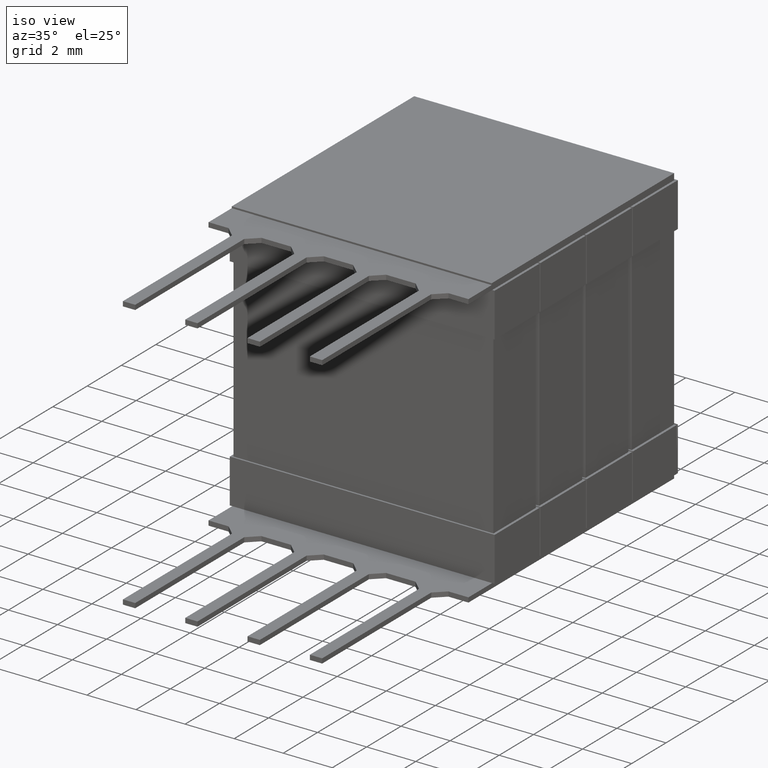
[diagram: clean part render]
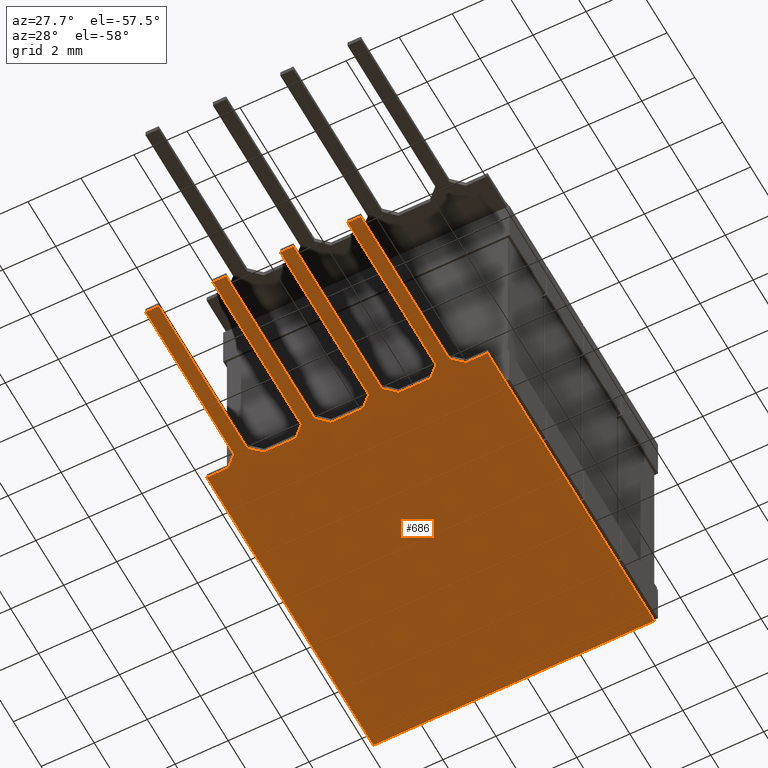
[diagram: tour spotlight — one face highlighted and labeled with its STEP entity id]
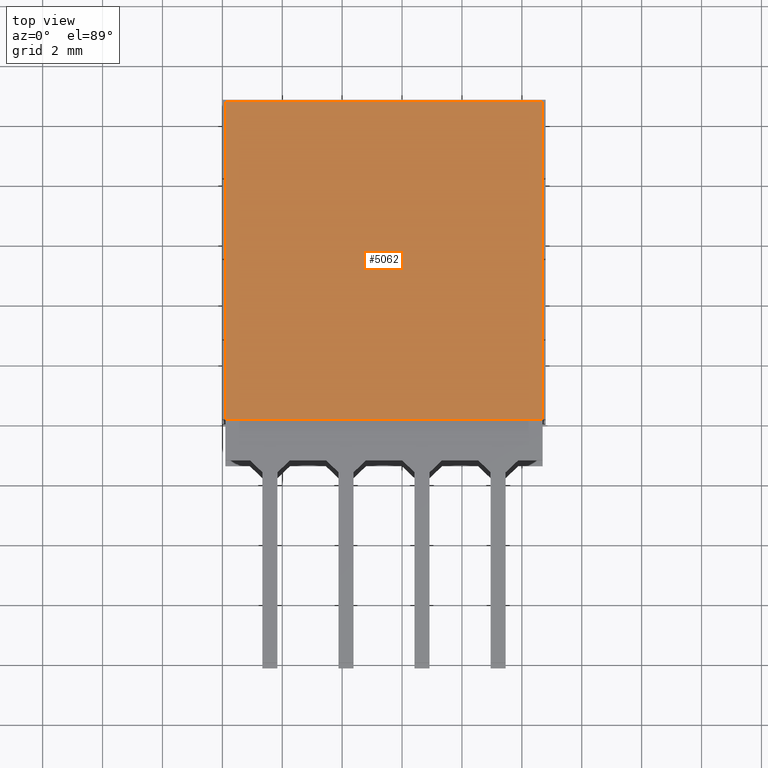
[diagram: tour spotlight — one face highlighted and labeled with its STEP entity id]
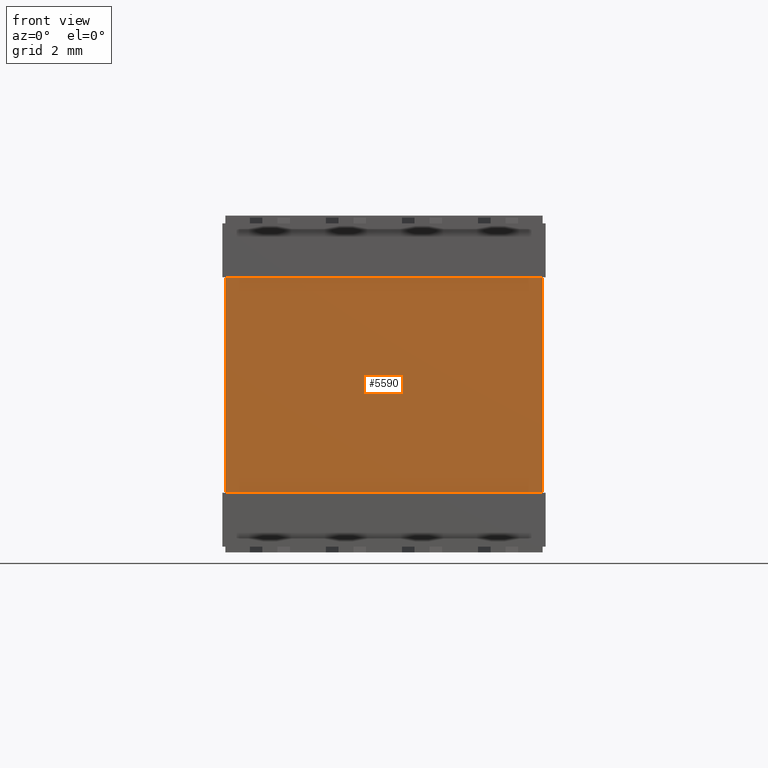
[diagram: tour spotlight — one face highlighted and labeled with its STEP entity id]
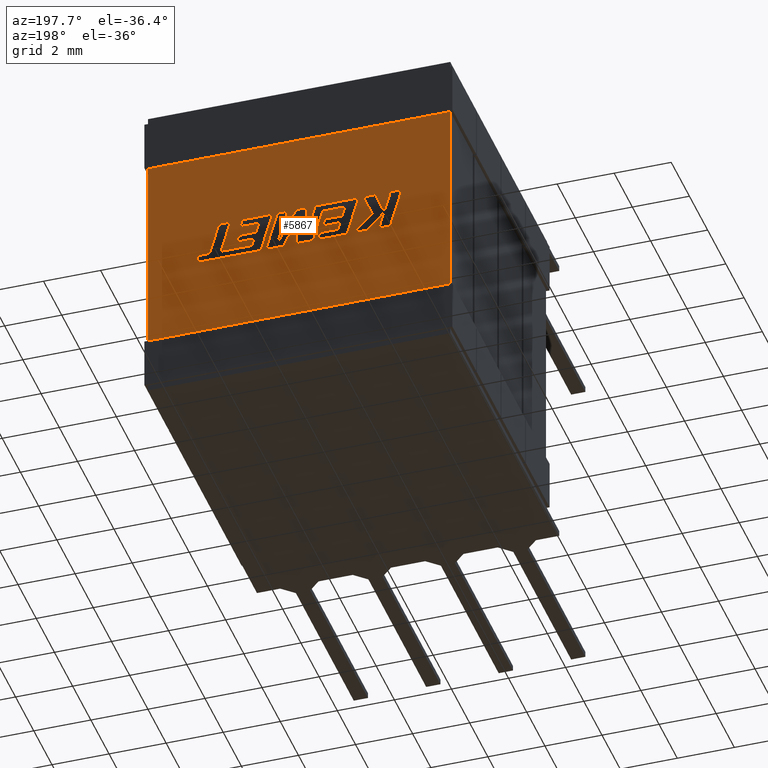
[diagram: tour spotlight — one face highlighted and labeled with its STEP entity id]
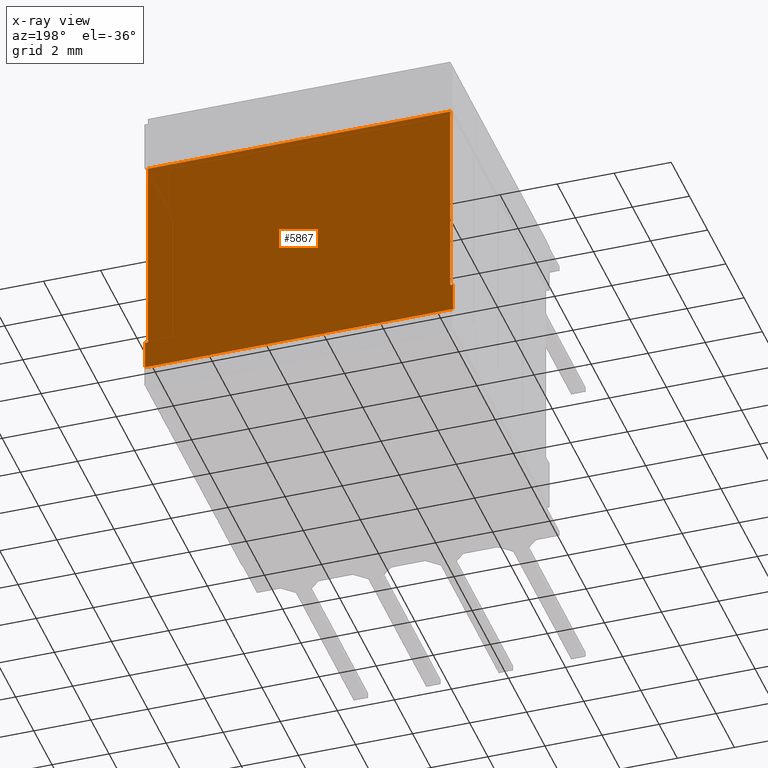
[diagram: x-ray of the same camera — body ghosted, this tour face saturated]
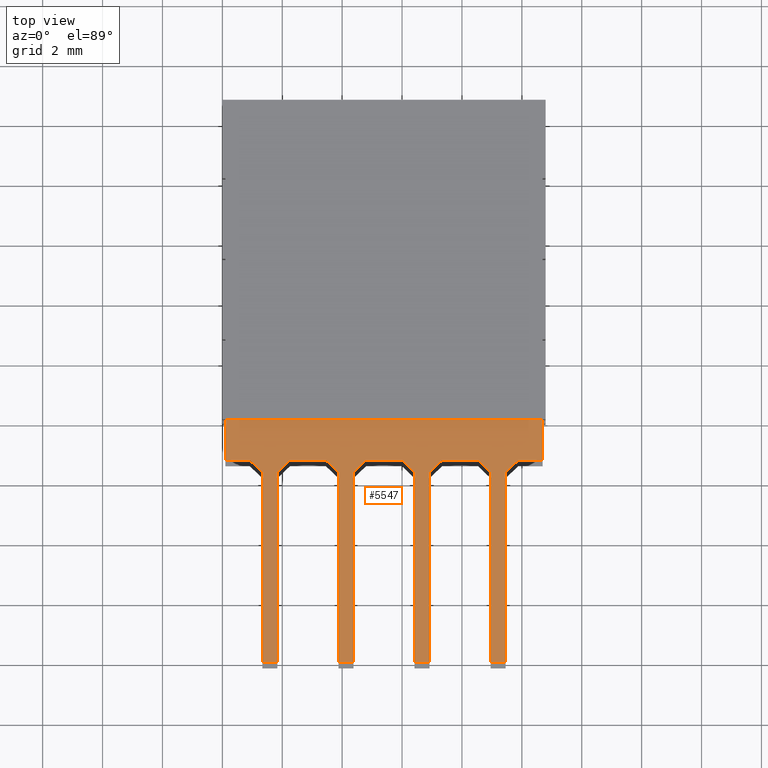
[diagram: tour spotlight — one face highlighted and labeled with its STEP entity id]
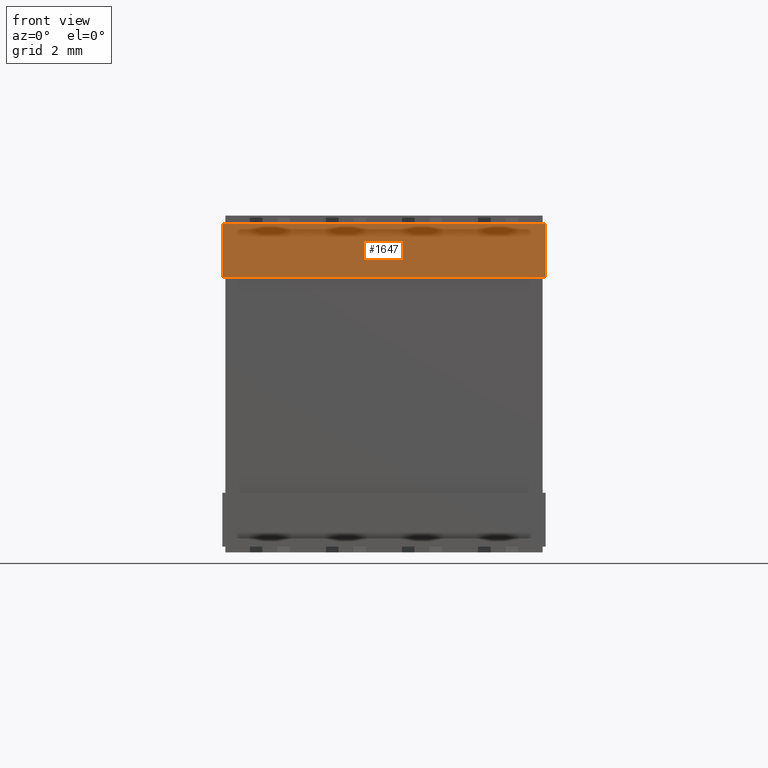
[diagram: tour spotlight — one face highlighted and labeled with its STEP entity id]
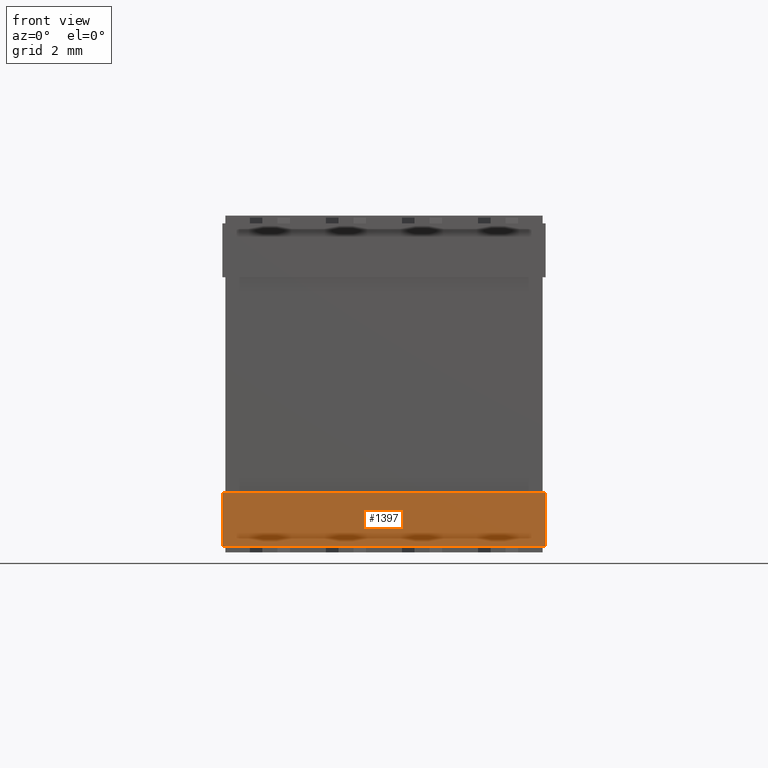
[diagram: tour spotlight — one face highlighted and labeled with its STEP entity id]
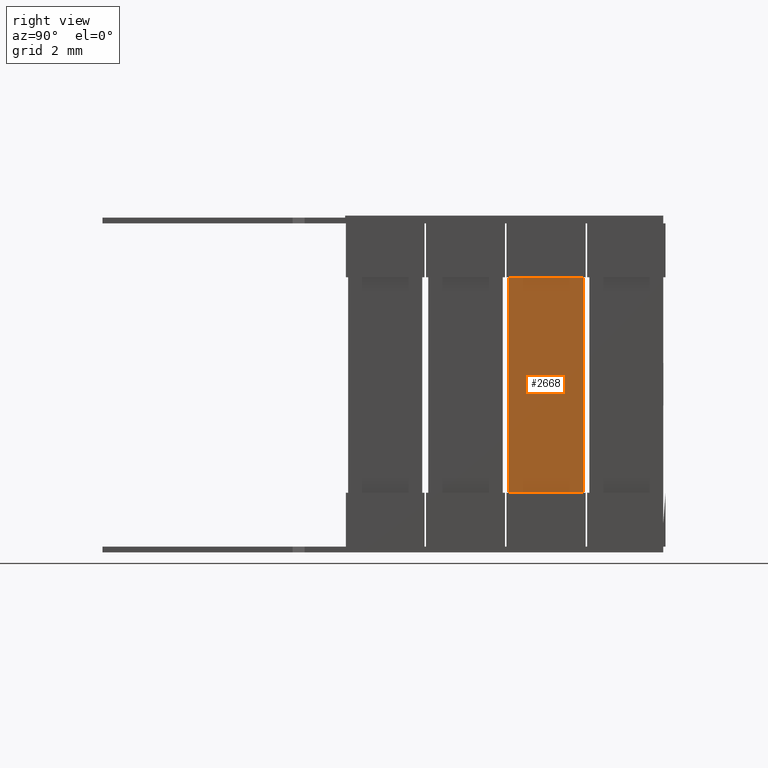
[diagram: tour spotlight — one face highlighted and labeled with its STEP entity id]
A machine part: a face-by-face anatomy tour. The part has 199 B-rep faces; the first image is the clean iso view, then the 8 largest visible faces are spotlighted one at a time (largest first), each with its STEP entity span.

Face 1 — auxiliary view, entity #686. In plain terms, the highlighted planar face has unit normal (0, -0, 1).
Definition (entity closure, byte-faithful):
#39 = LINE ( 'NONE', #6404, #8355 ) ;
#63 = DIRECTION ( 'NONE',  ( -1.303976554229626400E-015, 1.000000000000000000, 0.0000000000000000000 ) ) ;
#156 = VERTEX_POINT ( 'NONE', #4325 ) ;
#158 = CARTESIAN_POINT ( 'NONE',  ( 1.837499999999849600, -1.752999999999987200, -10.98750000000000100 ) ) ;
#175 = VECTOR ( 'NONE', #5293, 1000.000000000000000 ) ;
#194 = DIRECTION ( 'NONE',  ( 0.7241379310344374700, -0.6896551724138406700, 0.0000000000000000000 ) ) ;
#240 = CARTESIAN_POINT ( 'NONE',  ( 3.457500000000090600, -1.352999999999983300, -10.98750000000000100 ) ) ;
#278 = VERTEX_POINT ( 'NONE', #2396 ) ;
#281 = EDGE_CURVE ( 'NONE', #6379, #7161, #4156, .T. ) ;
#291 = DIRECTION ( 'NONE',  ( 0.0000000000000000000, -0.0000000000000000000, 1.000000000000000000 ) ) ;
#356 = CARTESIAN_POINT ( 'NONE',  ( 9.457500000000170100, -1.752999999999969500, -10.98750000000000100 ) ) ;
#364 = ORIENTED_EDGE ( 'NONE', *, *, #3802, .F. ) ;
#405 = DIRECTION ( 'NONE',  ( 1.000000000000000000, -1.273191542001195500E-014, 0.0000000000000000000 ) ) ;
#484 = DIRECTION ( 'NONE',  ( 1.000000000000000000, 7.632783294298791800E-014, 0.0000000000000000000 ) ) ;
#494 = DIRECTION ( 'NONE',  ( -1.980589795406591000E-014, -1.000000000000000000, -0.0000000000000000000 ) ) ;
#507 = VECTOR ( 'NONE', #4108, 1000.000000000000000 ) ;
#537 = LINE ( 'NONE', #2887, #4664 ) ;
#545 = EDGE_CURVE ( 'NONE', #2806, #2485, #3758, .T. ) ;
#551 = CARTESIAN_POINT ( 'NONE',  ( 9.877499999999903600, -1.352999999999955600, -10.98750000000000100 ) ) ;
#666 = ORIENTED_EDGE ( 'NONE', *, *, #545, .F. ) ;
#686 = ADVANCED_FACE ( 'NONE', ( #2429 ), #8088, .F. ) ;
#710 = VECTOR ( 'NONE', #7953, 1000.000000000000000 ) ;
#722 = VECTOR ( 'NONE', #8151, 1000.000000000000000 ) ;
#758 = VERTEX_POINT ( 'NONE', #3085 ) ;
#793 = VERTEX_POINT ( 'NONE', #7576 ) ;
#802 = CARTESIAN_POINT ( 'NONE',  ( 3.877500000000035500, -1.752999999999983200, -10.98750000000000100 ) ) ;
#917 = CARTESIAN_POINT ( 'NONE',  ( 6.417500000000193200, -1.752999999999983200, -10.98750000000000100 ) ) ;
#1042 = EDGE_CURVE ( 'NONE', #6318, #4466, #4743, .T. ) ;
#1052 = DIRECTION ( 'NONE',  ( 0.0000000000000000000, 1.000000000000000000, 0.0000000000000000000 ) ) ;
#1055 = ORIENTED_EDGE ( 'NONE', *, *, #3761, .F. ) ;
#1095 = EDGE_CURVE ( 'NONE', #5528, #6091, #3126, .T. ) ;
#1114 = CARTESIAN_POINT ( 'NONE',  ( 6.917500000000012000, -8.102999999999944700, -10.98750000000000100 ) ) ;
#1145 = ORIENTED_EDGE ( 'NONE', *, *, #4844, .F. ) ;
#1164 = VERTEX_POINT ( 'NONE', #356 ) ;
#1183 = ORIENTED_EDGE ( 'NONE', *, *, #3427, .F. ) ;
#1190 = EDGE_CURVE ( 'NONE', #5448, #6318, #5991, .T. ) ;
#1239 = VERTEX_POINT ( 'NONE', #2392 ) ;
#1286 = LINE ( 'NONE', #3390, #175 ) ;
#1295 = DIRECTION ( 'NONE',  ( 0.7241379310342519500, 0.6896551724140355100, 0.0000000000000000000 ) ) ;
#1301 = VERTEX_POINT ( 'NONE', #8273 ) ;
#1339 = LINE ( 'NONE', #2639, #6021 ) ;
#1340 = EDGE_CURVE ( 'NONE', #6091, #3256, #5363, .T. ) ;
#1394 = VECTOR ( 'NONE', #4013, 1000.000000000000000 ) ;
#1436 = LINE ( 'NONE', #1493, #1532 ) ;
#1461 = EDGE_CURVE ( 'NONE', #758, #6379, #1286, .T. ) ;
#1467 = ORIENTED_EDGE ( 'NONE', *, *, #1042, .F. ) ;
#1485 = ORIENTED_EDGE ( 'NONE', *, *, #4464, .F. ) ;
#1491 = EDGE_CURVE ( 'NONE', #3256, #3903, #2502, .T. ) ;
#1493 = CARTESIAN_POINT ( 'NONE',  ( 1.337499999999904700, -8.103000000000001500, -10.98750000000000100 ) ) ;
#1526 = CARTESIAN_POINT ( 'NONE',  ( 4.797499999999573100, -1.352999999999969600, -10.98750000000000100 ) ) ;
#1532 = VECTOR ( 'NONE', #2807, 1000.000000000000000 ) ;
#1626 = ORIENTED_EDGE ( 'NONE', *, *, #5555, .F. ) ;
#1711 = ORIENTED_EDGE ( 'NONE', *, *, #1340, .F. ) ;
#1715 = EDGE_CURVE ( 'NONE', #793, #3445, #6563, .T. ) ;
#1845 = VECTOR ( 'NONE', #4162, 999.9999999999998900 ) ;
#1874 = DIRECTION ( 'NONE',  ( 0.0000000000000000000, 1.000000000000000000, 0.0000000000000000000 ) ) ;
#1915 = CARTESIAN_POINT ( 'NONE',  ( 1.337499999999904700, -8.103000000000001500, -10.98750000000000100 ) ) ;
#1919 = LINE ( 'NONE', #1526, #2819 ) ;
#1989 = CARTESIAN_POINT ( 'NONE',  ( 6.417500000000067000, -8.102999999999983800, -10.98750000000000100 ) ) ;
#2059 = VECTOR ( 'NONE', #3870, 1000.000000000000000 ) ;
#2138 = LINE ( 'NONE', #8171, #3873 ) ;
#2148 = ORIENTED_EDGE ( 'NONE', *, *, #5652, .F. ) ;
#2193 = VECTOR ( 'NONE', #1874, 1000.000000000000000 ) ;
#2201 = CARTESIAN_POINT ( 'NONE',  ( 10.69500000000000600, 10.62000000000000100, -10.98750000000000100 ) ) ;
#2208 = LINE ( 'NONE', #917, #507 ) ;
#2244 = ORIENTED_EDGE ( 'NONE', *, *, #1461, .F. ) ;
#2261 = DIRECTION ( 'NONE',  ( 0.7241379310342518400, 0.6896551724140355100, 0.0000000000000000000 ) ) ;
#2337 = LINE ( 'NONE', #3980, #3558 ) ;
#2373 = EDGE_CURVE ( 'NONE', #7868, #7882, #4994, .T. ) ;
#2392 = CARTESIAN_POINT ( 'NONE',  ( 5.997500000000248300, -1.352999999999983300, -10.98750000000000100 ) ) ;
#2396 = CARTESIAN_POINT ( 'NONE',  ( 0.09999999999997896700, 10.62000000000000100, -10.98750000000000100 ) ) ;
#2400 = EDGE_CURVE ( 'NONE', #4924, #7175, #7134, .T. ) ;
#2429 = FACE_OUTER_BOUND ( 'NONE', #5429, .T. ) ;
#2485 = VERTEX_POINT ( 'NONE', #1915 ) ;
#2495 = CARTESIAN_POINT ( 'NONE',  ( 4.377499999999854700, -8.102999999999944700, -10.98750000000000100 ) ) ;
#2501 = ORIENTED_EDGE ( 'NONE', *, *, #7354, .F. ) ;
#2502 = LINE ( 'NONE', #6838, #3304 ) ;
#2561 = DIRECTION ( 'NONE',  ( 1.000000000000000000, -2.312964634634830700E-014, 0.0000000000000000000 ) ) ;
#2613 = EDGE_CURVE ( 'NONE', #2485, #6465, #1436, .T. ) ;
#2639 = CARTESIAN_POINT ( 'NONE',  ( 6.417500000000067000, -8.102999999999983800, -10.98750000000000100 ) ) ;
#2646 = CARTESIAN_POINT ( 'NONE',  ( 4.377499999999854700, -8.102999999999944700, -10.98750000000000100 ) ) ;
#2711 = VERTEX_POINT ( 'NONE', #2983 ) ;
#2806 = VERTEX_POINT ( 'NONE', #5044 ) ;
#2807 = DIRECTION ( 'NONE',  ( 1.000000000000000000, 7.632783294298791800E-014, 0.0000000000000000000 ) ) ;
#2817 = VECTOR ( 'NONE', #194, 1000.000000000000000 ) ;
#2819 = VECTOR ( 'NONE', #3539, 1000.000000000000100 ) ;
#2861 = CARTESIAN_POINT ( 'NONE',  ( 8.537500000000406400, -1.352999999999983300, -10.98750000000000100 ) ) ;
#2862 = DIRECTION ( 'NONE',  ( -1.000000000000000000, 0.0000000000000000000, 0.0000000000000000000 ) ) ;
#2887 = CARTESIAN_POINT ( 'NONE',  ( 2.257499999999568200, -1.352999999999987300, -10.98750000000000100 ) ) ;
#2933 = LINE ( 'NONE', #7463, #7105 ) ;
#2983 = CARTESIAN_POINT ( 'NONE',  ( 2.257499999999568200, -1.352999999999987300, -10.98750000000000100 ) ) ;
#3009 = LINE ( 'NONE', #551, #6270 ) ;
#3046 = EDGE_CURVE ( 'NONE', #4466, #4924, #2337, .T. ) ;
#3085 = CARTESIAN_POINT ( 'NONE',  ( 9.877499999999903600, -1.352999999999955600, -10.98750000000000100 ) ) ;
#3087 = CARTESIAN_POINT ( 'NONE',  ( 7.337499999999730300, -1.352999999999969600, -10.98750000000000100 ) ) ;
#3116 = ORIENTED_EDGE ( 'NONE', *, *, #281, .F. ) ;
#3126 = LINE ( 'NONE', #6654, #1394 ) ;
#3199 = EDGE_CURVE ( 'NONE', #2711, #5528, #7023, .T. ) ;
#3256 = VERTEX_POINT ( 'NONE', #6109 ) ;
#3304 = VECTOR ( 'NONE', #3481, 1000.000000000000000 ) ;
#3361 = ORIENTED_EDGE ( 'NONE', *, *, #1095, .F. ) ;
#3390 = CARTESIAN_POINT ( 'NONE',  ( 9.877499999999903600, -1.352999999999955600, -10.98750000000000100 ) ) ;
#3414 = LINE ( 'NONE', #3087, #4338 ) ;
#3424 = CARTESIAN_POINT ( 'NONE',  ( 7.337499999999730300, -1.352999999999969600, -10.98750000000000100 ) ) ;
#3427 = EDGE_CURVE ( 'NONE', #7175, #1164, #5464, .T. ) ;
#3445 = VERTEX_POINT ( 'NONE', #1989 ) ;
#3481 = DIRECTION ( 'NONE',  ( 1.000000000000000000, 7.632783294298791800E-014, 0.0000000000000000000 ) ) ;
#3539 = DIRECTION ( 'NONE',  ( 0.7241379310342518400, 0.6896551724140355100, 0.0000000000000000000 ) ) ;
#3558 = VECTOR ( 'NONE', #6593, 1000.000000000000000 ) ;
#3625 = ORIENTED_EDGE ( 'NONE', *, *, #2613, .F. ) ;
#3642 = CARTESIAN_POINT ( 'NONE',  ( 8.957500000000225200, -8.102999999999983800, -10.98750000000000100 ) ) ;
#3726 = ORIENTED_EDGE ( 'NONE', *, *, #3046, .F. ) ;
#3758 = LINE ( 'NONE', #5409, #710 ) ;
#3761 = EDGE_CURVE ( 'NONE', #7161, #278, #7126, .T. ) ;
#3802 = EDGE_CURVE ( 'NONE', #156, #1239, #39, .T. ) ;
#3870 = DIRECTION ( 'NONE',  ( -1.000000000000000000, -0.0000000000000000000, 0.0000000000000000000 ) ) ;
#3873 = VECTOR ( 'NONE', #405, 1000.000000000000000 ) ;
#3903 = VERTEX_POINT ( 'NONE', #2646 ) ;
#3980 = CARTESIAN_POINT ( 'NONE',  ( 8.957500000000351300, -1.752999999999983200, -10.98750000000000100 ) ) ;
#4013 = DIRECTION ( 'NONE',  ( 0.7241379310344374700, -0.6896551724138406700, 0.0000000000000000000 ) ) ;
#4015 = DIRECTION ( 'NONE',  ( 1.756746191114908800E-015, -1.000000000000000000, 0.0000000000000000000 ) ) ;
#4075 = EDGE_CURVE ( 'NONE', #7012, #2711, #537, .T. ) ;
#4108 = DIRECTION ( 'NONE',  ( 0.7241379310344374700, -0.6896551724138406700, 0.0000000000000000000 ) ) ;
#4109 = EDGE_CURVE ( 'NONE', #8153, #2806, #7412, .T. ) ;
#4156 = LINE ( 'NONE', #5680, #5574 ) ;
#4162 = DIRECTION ( 'NONE',  ( 0.7241379310344385800, -0.6896551724138395600, 0.0000000000000000000 ) ) ;
#4209 = CARTESIAN_POINT ( 'NONE',  ( 0.0000000000000000000, 0.0000000000000000000, -10.98750000000000100 ) ) ;
#4220 = EDGE_CURVE ( 'NONE', #4787, #8153, #2138, .T. ) ;
#4258 = CARTESIAN_POINT ( 'NONE',  ( 3.877500000000035500, -1.752999999999983200, -10.98750000000000100 ) ) ;
#4325 = CARTESIAN_POINT ( 'NONE',  ( 4.797499999999573100, -1.352999999999969600, -10.98750000000000100 ) ) ;
#4338 = VECTOR ( 'NONE', #5665, 1000.000000000000100 ) ;
#4464 = EDGE_CURVE ( 'NONE', #3445, #7868, #1339, .T. ) ;
#4466 = VERTEX_POINT ( 'NONE', #5716 ) ;
#4664 = VECTOR ( 'NONE', #2261, 1000.000000000000100 ) ;
#4690 = ORIENTED_EDGE ( 'NONE', *, *, #2373, .F. ) ;
#4743 = LINE ( 'NONE', #7902, #2817 ) ;
#4766 = VECTOR ( 'NONE', #4015, 1000.000000000000000 ) ;
#4787 = VERTEX_POINT ( 'NONE', #5736 ) ;
#4804 = CARTESIAN_POINT ( 'NONE',  ( 3.457500000000090600, -1.352999999999983300, -10.98750000000000100 ) ) ;
#4844 = EDGE_CURVE ( 'NONE', #278, #4787, #6517, .T. ) ;
#4924 = VERTEX_POINT ( 'NONE', #7906 ) ;
#4941 = CARTESIAN_POINT ( 'NONE',  ( 6.417500000000193200, -1.752999999999983200, -10.98750000000000100 ) ) ;
#4987 = VECTOR ( 'NONE', #484, 1000.000000000000000 ) ;
#4994 = LINE ( 'NONE', #1114, #5103 ) ;
#5022 = EDGE_CURVE ( 'NONE', #6465, #7012, #2933, .T. ) ;
#5044 = CARTESIAN_POINT ( 'NONE',  ( 1.337500000000030600, -1.753000000000001000, -10.98750000000000100 ) ) ;
#5085 = VECTOR ( 'NONE', #6081, 1000.000000000000000 ) ;
#5103 = VECTOR ( 'NONE', #8272, 1000.000000000000000 ) ;
#5256 = VECTOR ( 'NONE', #8211, 1000.000000000000000 ) ;
#5293 = DIRECTION ( 'NONE',  ( 1.000000000000000000, -4.243971806670481500E-015, 0.0000000000000000000 ) ) ;
#5363 = LINE ( 'NONE', #4258, #5256 ) ;
#5389 = ORIENTED_EDGE ( 'NONE', *, *, #2400, .F. ) ;
#5409 = CARTESIAN_POINT ( 'NONE',  ( 1.337500000000030600, -1.753000000000001000, -10.98750000000000100 ) ) ;
#5429 = EDGE_LOOP ( 'NONE', ( #1145, #1055, #3116, #2244, #6080, #1183, #5389, #3726, #1467, #7469, #2148, #4690, #1485, #7710, #1626, #364, #6526, #2501, #7250, #1711, #3361, #5540, #7249, #7989, #3625, #666, #7346, #8217 ) ) ;
#5448 = VERTEX_POINT ( 'NONE', #3424 ) ;
#5464 = LINE ( 'NONE', #5829, #7511 ) ;
#5485 = EDGE_CURVE ( 'NONE', #1301, #156, #1919, .T. ) ;
#5488 = AXIS2_PLACEMENT_3D ( 'NONE', #4209, #291, #2862 ) ;
#5528 = VERTEX_POINT ( 'NONE', #240 ) ;
#5540 = ORIENTED_EDGE ( 'NONE', *, *, #3199, .F. ) ;
#5555 = EDGE_CURVE ( 'NONE', #1239, #793, #2208, .T. ) ;
#5574 = VECTOR ( 'NONE', #63, 1000.000000000000000 ) ;
#5652 = EDGE_CURVE ( 'NONE', #7882, #5448, #3414, .T. ) ;
#5665 = DIRECTION ( 'NONE',  ( 0.7241379310342518400, 0.6896551724140355100, 0.0000000000000000000 ) ) ;
#5680 = CARTESIAN_POINT ( 'NONE',  ( 10.69500000000000600, 10.62000000000000100, -10.98750000000000100 ) ) ;
#5716 = CARTESIAN_POINT ( 'NONE',  ( 8.957500000000351300, -1.752999999999983200, -10.98750000000000100 ) ) ;
#5736 = CARTESIAN_POINT ( 'NONE',  ( 0.1000000000000000100, -1.352999999999990200, -10.98750000000000100 ) ) ;
#5829 = CARTESIAN_POINT ( 'NONE',  ( 9.457500000000170100, -8.102999999999944700, -10.98750000000000100 ) ) ;
#5837 = VECTOR ( 'NONE', #494, 1000.000000000000000 ) ;
#5991 = LINE ( 'NONE', #7402, #722 ) ;
#6000 = CARTESIAN_POINT ( 'NONE',  ( 0.09999999999997896700, 10.62000000000000100, -10.98750000000000100 ) ) ;
#6021 = VECTOR ( 'NONE', #7040, 1000.000000000000000 ) ;
#6080 = ORIENTED_EDGE ( 'NONE', *, *, #7313, .F. ) ;
#6081 = DIRECTION ( 'NONE',  ( 1.000000000000000000, -1.445602896646771400E-014, 0.0000000000000000000 ) ) ;
#6091 = VERTEX_POINT ( 'NONE', #802 ) ;
#6109 = CARTESIAN_POINT ( 'NONE',  ( 3.877499999999909800, -8.102999999999983800, -10.98750000000000100 ) ) ;
#6156 = CARTESIAN_POINT ( 'NONE',  ( 9.457500000000170100, -8.102999999999944700, -10.98750000000000100 ) ) ;
#6225 = CARTESIAN_POINT ( 'NONE',  ( 10.69500000000002000, -1.352999999999959100, -10.98750000000000100 ) ) ;
#6270 = VECTOR ( 'NONE', #1295, 999.9999999999998900 ) ;
#6318 = VERTEX_POINT ( 'NONE', #2861 ) ;
#6379 = VERTEX_POINT ( 'NONE', #6225 ) ;
#6404 = CARTESIAN_POINT ( 'NONE',  ( 5.997500000000248300, -1.352999999999983300, -10.98750000000000100 ) ) ;
#6465 = VERTEX_POINT ( 'NONE', #8348 ) ;
#6517 = LINE ( 'NONE', #6000, #4766 ) ;
#6526 = ORIENTED_EDGE ( 'NONE', *, *, #5485, .F. ) ;
#6563 = LINE ( 'NONE', #4941, #5837 ) ;
#6593 = DIRECTION ( 'NONE',  ( -1.966930555438269700E-014, -1.000000000000000000, -0.0000000000000000000 ) ) ;
#6608 = CARTESIAN_POINT ( 'NONE',  ( 6.917500000000012000, -8.102999999999944700, -10.98750000000000100 ) ) ;
#6654 = CARTESIAN_POINT ( 'NONE',  ( 3.877500000000035500, -1.752999999999983200, -10.98750000000000100 ) ) ;
#6683 = CARTESIAN_POINT ( 'NONE',  ( 6.917500000000012000, -1.752999999999969500, -10.98750000000000100 ) ) ;
#6827 = CARTESIAN_POINT ( 'NONE',  ( 0.9175000000000840300, -1.353000000000000600, -10.98750000000000100 ) ) ;
#6838 = CARTESIAN_POINT ( 'NONE',  ( 3.877499999999909800, -8.102999999999983800, -10.98750000000000100 ) ) ;
#7012 = VERTEX_POINT ( 'NONE', #158 ) ;
#7023 = LINE ( 'NONE', #4804, #5085 ) ;
#7040 = DIRECTION ( 'NONE',  ( 1.000000000000000000, 7.632783294298791800E-014, 0.0000000000000000000 ) ) ;
#7105 = VECTOR ( 'NONE', #1052, 1000.000000000000000 ) ;
#7126 = LINE ( 'NONE', #8379, #2059 ) ;
#7134 = LINE ( 'NONE', #3642, #4987 ) ;
#7161 = VERTEX_POINT ( 'NONE', #2201 ) ;
#7171 = LINE ( 'NONE', #2495, #2193 ) ;
#7175 = VERTEX_POINT ( 'NONE', #6156 ) ;
#7249 = ORIENTED_EDGE ( 'NONE', *, *, #4075, .F. ) ;
#7250 = ORIENTED_EDGE ( 'NONE', *, *, #1491, .F. ) ;
#7313 = EDGE_CURVE ( 'NONE', #1164, #758, #3009, .T. ) ;
#7346 = ORIENTED_EDGE ( 'NONE', *, *, #4109, .F. ) ;
#7354 = EDGE_CURVE ( 'NONE', #3903, #1301, #7171, .T. ) ;
#7402 = CARTESIAN_POINT ( 'NONE',  ( 8.537500000000406400, -1.352999999999983300, -10.98750000000000100 ) ) ;
#7412 = LINE ( 'NONE', #8063, #1845 ) ;
#7463 = CARTESIAN_POINT ( 'NONE',  ( 1.837499999999849600, -8.102999999999962500, -10.98750000000000100 ) ) ;
#7469 = ORIENTED_EDGE ( 'NONE', *, *, #1190, .F. ) ;
#7511 = VECTOR ( 'NONE', #7803, 1000.000000000000000 ) ;
#7576 = CARTESIAN_POINT ( 'NONE',  ( 6.417500000000193200, -1.752999999999983200, -10.98750000000000100 ) ) ;
#7710 = ORIENTED_EDGE ( 'NONE', *, *, #1715, .F. ) ;
#7803 = DIRECTION ( 'NONE',  ( 0.0000000000000000000, 1.000000000000000000, 0.0000000000000000000 ) ) ;
#7868 = VERTEX_POINT ( 'NONE', #6608 ) ;
#7882 = VERTEX_POINT ( 'NONE', #6683 ) ;
#7902 = CARTESIAN_POINT ( 'NONE',  ( 8.957500000000351300, -1.752999999999983200, -10.98750000000000100 ) ) ;
#7906 = CARTESIAN_POINT ( 'NONE',  ( 8.957500000000225200, -8.102999999999983800, -10.98750000000000100 ) ) ;
#7953 = DIRECTION ( 'NONE',  ( -1.980589795406591000E-014, -1.000000000000000000, -0.0000000000000000000 ) ) ;
#7989 = ORIENTED_EDGE ( 'NONE', *, *, #5022, .F. ) ;
#8063 = CARTESIAN_POINT ( 'NONE',  ( 1.337500000000030600, -1.753000000000001000, -10.98750000000000100 ) ) ;
#8088 = PLANE ( 'NONE',  #5488 ) ;
#8151 = DIRECTION ( 'NONE',  ( 1.000000000000000000, -1.156482317317467100E-014, 0.0000000000000000000 ) ) ;
#8153 = VERTEX_POINT ( 'NONE', #6827 ) ;
#8171 = CARTESIAN_POINT ( 'NONE',  ( 0.9175000000000840300, -1.353000000000000600, -10.98750000000000100 ) ) ;
#8211 = DIRECTION ( 'NONE',  ( -1.980589795406591000E-014, -1.000000000000000000, -0.0000000000000000000 ) ) ;
#8217 = ORIENTED_EDGE ( 'NONE', *, *, #4220, .F. ) ;
#8272 = DIRECTION ( 'NONE',  ( 0.0000000000000000000, 1.000000000000000000, 0.0000000000000000000 ) ) ;
#8273 = CARTESIAN_POINT ( 'NONE',  ( 4.377499999999854700, -1.752999999999969500, -10.98750000000000100 ) ) ;
#8348 = CARTESIAN_POINT ( 'NONE',  ( 1.837499999999849600, -8.102999999999962500, -10.98750000000000100 ) ) ;
#8355 = VECTOR ( 'NONE', #2561, 1000.000000000000000 ) ;
#8379 = CARTESIAN_POINT ( 'NONE',  ( 0.09999999999997896700, 10.62000000000000100, -10.98750000000000100 ) ) ;

Face 2 — top view, entity #5062. In plain terms, the highlighted planar face has unit normal (-0, 0, 1).
Definition (entity closure, byte-faithful):
#198 = CARTESIAN_POINT ( 'NONE',  ( 0.09999999999997896700, 10.62000000000000100, 0.2600000000000000100 ) ) ;
#371 = VERTEX_POINT ( 'NONE', #8042 ) ;
#415 = PLANE ( 'NONE',  #7626 ) ;
#538 = LINE ( 'NONE', #6023, #3153 ) ;
#552 = ORIENTED_EDGE ( 'NONE', *, *, #3828, .T. ) ;
#876 = EDGE_CURVE ( 'NONE', #5907, #371, #4457, .T. ) ;
#1031 = CARTESIAN_POINT ( 'NONE',  ( 0.0000000000000000000, 0.0000000000000000000, 0.2600000000000000100 ) ) ;
#1048 = ORIENTED_EDGE ( 'NONE', *, *, #876, .T. ) ;
#1368 = DIRECTION ( 'NONE',  ( 0.0000000000000000000, -1.000000000000000000, 0.0000000000000000000 ) ) ;
#1649 = VERTEX_POINT ( 'NONE', #5513 ) ;
#1833 = EDGE_LOOP ( 'NONE', ( #1048, #552, #5060, #3241 ) ) ;
#3058 = EDGE_CURVE ( 'NONE', #1649, #8300, #538, .T. ) ;
#3149 = CARTESIAN_POINT ( 'NONE',  ( 0.09999999999997896700, 0.0000000000000000000, 0.2600000000000000100 ) ) ;
#3153 = VECTOR ( 'NONE', #7841, 1000.000000000000000 ) ;
#3210 = CARTESIAN_POINT ( 'NONE',  ( 0.09999999999997896700, 10.62000000000000100, 0.2600000000000000100 ) ) ;
#3241 = ORIENTED_EDGE ( 'NONE', *, *, #4884, .T. ) ;
#3551 = LINE ( 'NONE', #198, #4565 ) ;
#3828 = EDGE_CURVE ( 'NONE', #371, #1649, #4484, .T. ) ;
#4457 = LINE ( 'NONE', #6894, #6188 ) ;
#4484 = LINE ( 'NONE', #3149, #6003 ) ;
#4565 = VECTOR ( 'NONE', #6551, 1000.000000000000000 ) ;
#4884 = EDGE_CURVE ( 'NONE', #8300, #5907, #3551, .T. ) ;
#5060 = ORIENTED_EDGE ( 'NONE', *, *, #3058, .T. ) ;
#5062 = ADVANCED_FACE ( 'NONE', ( #5880 ), #415, .T. ) ;
#5163 = DIRECTION ( 'NONE',  ( 1.000000000000000000, 0.0000000000000000000, 0.0000000000000000000 ) ) ;
#5501 = DIRECTION ( 'NONE',  ( 1.000000000000000000, 0.0000000000000000000, 0.0000000000000000000 ) ) ;
#5513 = CARTESIAN_POINT ( 'NONE',  ( 10.69500000000001300, 0.0000000000000000000, 0.2600000000000000100 ) ) ;
#5880 = FACE_OUTER_BOUND ( 'NONE', #1833, .T. ) ;
#5907 = VERTEX_POINT ( 'NONE', #3210 ) ;
#6003 = VECTOR ( 'NONE', #5163, 1000.000000000000000 ) ;
#6023 = CARTESIAN_POINT ( 'NONE',  ( 10.69500000000001300, 10.62000000000000100, 0.2600000000000000100 ) ) ;
#6188 = VECTOR ( 'NONE', #1368, 1000.000000000000000 ) ;
#6551 = DIRECTION ( 'NONE',  ( -1.000000000000000000, -0.0000000000000000000, -0.0000000000000000000 ) ) ;
#6826 = DIRECTION ( 'NONE',  ( -0.0000000000000000000, 0.0000000000000000000, 1.000000000000000000 ) ) ;
#6894 = CARTESIAN_POINT ( 'NONE',  ( 0.09999999999997896700, 10.62000000000000100, 0.2600000000000000100 ) ) ;
#7444 = CARTESIAN_POINT ( 'NONE',  ( 10.69500000000001300, 10.62000000000000100, 0.2600000000000000100 ) ) ;
#7626 = AXIS2_PLACEMENT_3D ( 'NONE', #1031, #6826, #5501 ) ;
#7841 = DIRECTION ( 'NONE',  ( -0.0000000000000000000, 1.000000000000000000, -0.0000000000000000000 ) ) ;
#8042 = CARTESIAN_POINT ( 'NONE',  ( 0.09999999999997896700, 0.0000000000000000000, 0.2600000000000000100 ) ) ;
#8300 = VERTEX_POINT ( 'NONE', #7444 ) ;

Face 3 — front view, entity #5590. In plain terms, the highlighted planar face has unit normal (0, 1, 0).
Definition (entity closure, byte-faithful):
#228 = LINE ( 'NONE', #1551, #6717 ) ;
#499 = VERTEX_POINT ( 'NONE', #6959 ) ;
#500 = DIRECTION ( 'NONE',  ( 0.0000000000000000000, -9.418017481632246100E-018, 1.000000000000000000 ) ) ;
#856 = ORIENTED_EDGE ( 'NONE', *, *, #3345, .F. ) ;
#1010 = CARTESIAN_POINT ( 'NONE',  ( 0.0000000000000000000, 0.09999999999999874300, -8.995000000000001000 ) ) ;
#1073 = DIRECTION ( 'NONE',  ( 0.0000000000000000000, 1.000000000000000000, 9.418017481632246100E-018 ) ) ;
#1551 = CARTESIAN_POINT ( 'NONE',  ( 10.69500000000000200, 0.09999999999999872900, -1.799999998505077400 ) ) ;
#1554 = PLANE ( 'NONE',  #4675 ) ;
#1635 = ORIENTED_EDGE ( 'NONE', *, *, #2235, .T. ) ;
#1714 = DIRECTION ( 'NONE',  ( 1.000000000000000000, -0.0000000000000000000, -0.0000000000000000000 ) ) ;
#2117 = VERTEX_POINT ( 'NONE', #4656 ) ;
#2235 = EDGE_CURVE ( 'NONE', #499, #2117, #4405, .T. ) ;
#2330 = CARTESIAN_POINT ( 'NONE',  ( 0.09999999999998265800, 0.09999999999999872900, -1.799999998505077400 ) ) ;
#2497 = CARTESIAN_POINT ( 'NONE',  ( 0.0000000000000000000, 0.09999999999999867300, -1.800000000000000000 ) ) ;
#2531 = FACE_OUTER_BOUND ( 'NONE', #4996, .T. ) ;
#2758 = VERTEX_POINT ( 'NONE', #4169 ) ;
#2842 = ORIENTED_EDGE ( 'NONE', *, *, #6917, .T. ) ;
#3345 = EDGE_CURVE ( 'NONE', #499, #7168, #4765, .T. ) ;
#4042 = EDGE_CURVE ( 'NONE', #7168, #2758, #228, .T. ) ;
#4169 = CARTESIAN_POINT ( 'NONE',  ( 10.69500000000000200, 0.09999999999999874300, -8.995000000000001000 ) ) ;
#4394 = DIRECTION ( 'NONE',  ( 1.000000000000000000, -0.0000000000000000000, -0.0000000000000000000 ) ) ;
#4405 = LINE ( 'NONE', #2330, #7668 ) ;
#4491 = ORIENTED_EDGE ( 'NONE', *, *, #4042, .F. ) ;
#4656 = CARTESIAN_POINT ( 'NONE',  ( 0.09999999999998265800, 0.09999999999999874300, -8.995000000000001000 ) ) ;
#4675 = AXIS2_PLACEMENT_3D ( 'NONE', #6312, #1073, #500 ) ;
#4765 = LINE ( 'NONE', #2497, #6111 ) ;
#4839 = LINE ( 'NONE', #1010, #5869 ) ;
#4996 = EDGE_LOOP ( 'NONE', ( #1635, #2842, #4491, #856 ) ) ;
#5590 = ADVANCED_FACE ( 'NONE', ( #2531 ), #1554, .F. ) ;
#5869 = VECTOR ( 'NONE', #1714, 1000.000000000000000 ) ;
#6052 = DIRECTION ( 'NONE',  ( 0.0000000000000000000, 1.883603495935088700E-018, -1.000000000000000000 ) ) ;
#6111 = VECTOR ( 'NONE', #4394, 1000.000000000000000 ) ;
#6312 = CARTESIAN_POINT ( 'NONE',  ( 0.0000000000000000000, 0.09999999999999867300, -1.800000000000000000 ) ) ;
#6717 = VECTOR ( 'NONE', #6052, 1000.000000000000000 ) ;
#6828 = DIRECTION ( 'NONE',  ( 0.0000000000000000000, 1.883603495935088700E-018, -1.000000000000000000 ) ) ;
#6917 = EDGE_CURVE ( 'NONE', #2117, #2758, #4839, .T. ) ;
#6959 = CARTESIAN_POINT ( 'NONE',  ( 0.09999999999998265800, 0.09999999999999872900, -1.799999998505077400 ) ) ;
#7168 = VERTEX_POINT ( 'NONE', #7446 ) ;
#7446 = CARTESIAN_POINT ( 'NONE',  ( 10.69500000000000200, 0.09999999999999872900, -1.799999998505077400 ) ) ;
#7668 = VECTOR ( 'NONE', #6828, 1000.000000000000000 ) ;

Face 4 — auxiliary view, entity #5867. An x-ray twin of the same camera follows (body ghosted, this face saturated) — the face is partly hidden behind the body. In plain terms, the highlighted planar face has unit normal (0, -1, -0).
Definition (entity closure, byte-faithful):
#30 = VECTOR ( 'NONE', #7821, 1000.000000000000000 ) ;
#162 = CARTESIAN_POINT ( 'NONE',  ( 0.0000000000000000000, 10.62000000000000100, -1.799999998505076100 ) ) ;
#257 = EDGE_CURVE ( 'NONE', #5502, #6672, #4062, .T. ) ;
#285 = EDGE_CURVE ( 'NONE', #4133, #5401, #2439, .T. ) ;
#382 = ORIENTED_EDGE ( 'NONE', *, *, #4780, .F. ) ;
#384 = CARTESIAN_POINT ( 'NONE',  ( 10.79500000000000000, 10.62000000000000300, -10.01500000005210300 ) ) ;
#474 = VERTEX_POINT ( 'NONE', #384 ) ;
#621 = CARTESIAN_POINT ( 'NONE',  ( 0.0000000000000000000, 10.62000000000000100, -1.799999998505076100 ) ) ;
#656 = ORIENTED_EDGE ( 'NONE', *, *, #3447, .T. ) ;
#664 = EDGE_CURVE ( 'NONE', #1756, #474, #2322, .T. ) ;
#667 = PLANE ( 'NONE',  #5773 ) ;
#711 = LINE ( 'NONE', #3914, #5569 ) ;
#776 = CARTESIAN_POINT ( 'NONE',  ( 0.09999999999998265800, 10.62000000000000100, -8.994999999999999200 ) ) ;
#783 = EDGE_CURVE ( 'NONE', #5401, #474, #2920, .T. ) ;
#1044 = DIRECTION ( 'NONE',  ( 0.0000000000000000000, 2.111653652647752100E-016, -1.000000000000000000 ) ) ;
#1390 = CARTESIAN_POINT ( 'NONE',  ( 10.79500000000000000, 10.62000000000000100, -8.994999999999999200 ) ) ;
#1449 = ORIENTED_EDGE ( 'NONE', *, *, #257, .T. ) ;
#1492 = VERTEX_POINT ( 'NONE', #4801 ) ;
#1756 = VERTEX_POINT ( 'NONE', #6863 ) ;
#2115 = VECTOR ( 'NONE', #7338, 1000.000000000000000 ) ;
#2322 = LINE ( 'NONE', #3513, #6604 ) ;
#2439 = LINE ( 'NONE', #3049, #3240 ) ;
#2764 = CARTESIAN_POINT ( 'NONE',  ( 10.69500000000000200, 10.62000000000000100, -1.799999998505076100 ) ) ;
#2834 = ORIENTED_EDGE ( 'NONE', *, *, #664, .F. ) ;
#2913 = DIRECTION ( 'NONE',  ( 1.000000000000000000, -0.0000000000000000000, -0.0000000000000000000 ) ) ;
#2920 = LINE ( 'NONE', #4948, #4232 ) ;
#3049 = CARTESIAN_POINT ( 'NONE',  ( 10.69500000000000200, 10.62000000000000100, -8.994999999999999200 ) ) ;
#3234 = DIRECTION ( 'NONE',  ( 0.0000000000000000000, 2.111653652647752300E-016, -1.000000000000000000 ) ) ;
#3240 = VECTOR ( 'NONE', #5204, 1000.000000000000000 ) ;
#3388 = VERTEX_POINT ( 'NONE', #7169 ) ;
#3447 = EDGE_CURVE ( 'NONE', #1492, #5502, #711, .T. ) ;
#3506 = ORIENTED_EDGE ( 'NONE', *, *, #5439, .F. ) ;
#3513 = CARTESIAN_POINT ( 'NONE',  ( 0.0000000000000000000, 10.62000000000000300, -10.01500000005210300 ) ) ;
#3661 = VECTOR ( 'NONE', #5032, 1000.000000000000000 ) ;
#3914 = CARTESIAN_POINT ( 'NONE',  ( 0.09999999999998265800, 10.62000000000000100, -1.799999998505076100 ) ) ;
#3935 = DIRECTION ( 'NONE',  ( 0.0000000000000000000, -1.000000000000000000, -2.111653652647752300E-016 ) ) ;
#4050 = EDGE_LOOP ( 'NONE', ( #7301, #656, #1449, #382, #6263, #6592, #2834, #3506 ) ) ;
#4062 = LINE ( 'NONE', #6299, #3661 ) ;
#4133 = VERTEX_POINT ( 'NONE', #6162 ) ;
#4232 = VECTOR ( 'NONE', #1044, 1000.000000000000000 ) ;
#4780 = EDGE_CURVE ( 'NONE', #4133, #6672, #5187, .T. ) ;
#4801 = CARTESIAN_POINT ( 'NONE',  ( 0.09999999999998265800, 10.62000000000000100, -8.994999999999999200 ) ) ;
#4948 = CARTESIAN_POINT ( 'NONE',  ( 10.79500000000000000, 10.62000000000000100, -1.799999998505076100 ) ) ;
#5032 = DIRECTION ( 'NONE',  ( 1.000000000000000000, -0.0000000000000000000, -0.0000000000000000000 ) ) ;
#5187 = LINE ( 'NONE', #7141, #30 ) ;
#5204 = DIRECTION ( 'NONE',  ( 1.000000000000000000, -0.0000000000000000000, -0.0000000000000000000 ) ) ;
#5401 = VERTEX_POINT ( 'NONE', #1390 ) ;
#5439 = EDGE_CURVE ( 'NONE', #3388, #1756, #6084, .T. ) ;
#5482 = FACE_OUTER_BOUND ( 'NONE', #4050, .T. ) ;
#5502 = VERTEX_POINT ( 'NONE', #8035 ) ;
#5569 = VECTOR ( 'NONE', #6449, 1000.000000000000000 ) ;
#5773 = AXIS2_PLACEMENT_3D ( 'NONE', #621, #3935, #3234 ) ;
#5867 = ADVANCED_FACE ( 'NONE', ( #5482 ), #667, .F. ) ;
#6084 = LINE ( 'NONE', #162, #2115 ) ;
#6146 = EDGE_CURVE ( 'NONE', #1492, #3388, #6814, .T. ) ;
#6162 = CARTESIAN_POINT ( 'NONE',  ( 10.69500000000000200, 10.62000000000000100, -8.994999999999999200 ) ) ;
#6263 = ORIENTED_EDGE ( 'NONE', *, *, #285, .T. ) ;
#6299 = CARTESIAN_POINT ( 'NONE',  ( 0.0000000000000000000, 10.62000000000000100, -1.799999998505076100 ) ) ;
#6449 = DIRECTION ( 'NONE',  ( 0.0000000000000000000, 0.0000000000000000000, 1.000000000000000000 ) ) ;
#6592 = ORIENTED_EDGE ( 'NONE', *, *, #783, .T. ) ;
#6604 = VECTOR ( 'NONE', #2913, 1000.000000000000000 ) ;
#6672 = VERTEX_POINT ( 'NONE', #2764 ) ;
#6814 = LINE ( 'NONE', #776, #7722 ) ;
#6863 = CARTESIAN_POINT ( 'NONE',  ( 0.0000000000000000000, 10.62000000000000300, -10.01500000005210300 ) ) ;
#7141 = CARTESIAN_POINT ( 'NONE',  ( 10.69500000000000200, 10.62000000000000100, -1.799999998505076100 ) ) ;
#7169 = CARTESIAN_POINT ( 'NONE',  ( -1.734723475976807100E-014, 10.62000000000000100, -8.994999999999999200 ) ) ;
#7301 = ORIENTED_EDGE ( 'NONE', *, *, #6146, .F. ) ;
#7338 = DIRECTION ( 'NONE',  ( 0.0000000000000000000, 2.111653652647752100E-016, -1.000000000000000000 ) ) ;
#7722 = VECTOR ( 'NONE', #7923, 1000.000000000000000 ) ;
#7821 = DIRECTION ( 'NONE',  ( -0.0000000000000000000, -0.0000000000000000000, 1.000000000000000000 ) ) ;
#7923 = DIRECTION ( 'NONE',  ( -1.000000000000000000, -0.0000000000000000000, -0.0000000000000000000 ) ) ;
#8035 = CARTESIAN_POINT ( 'NONE',  ( 0.09999999999998265800, 10.62000000000000100, -1.799999998505076100 ) ) ;

Face 5 — top view, entity #5547. In plain terms, the highlighted planar face has unit normal (-0, 0, -1).
Definition (entity closure, byte-faithful):
#11 = CARTESIAN_POINT ( 'NONE',  ( 1.837499999999849600, -8.102999999999962500, 0.1925000000000000000 ) ) ;
#29 = VECTOR ( 'NONE', #5613, 1000.000000000000000 ) ;
#62 = LINE ( 'NONE', #675, #5822 ) ;
#145 = LINE ( 'NONE', #7834, #2966 ) ;
#154 = LINE ( 'NONE', #7436, #7865 ) ;
#189 = ORIENTED_EDGE ( 'NONE', *, *, #3235, .T. ) ;
#200 = DIRECTION ( 'NONE',  ( 1.000000000000000000, 0.0000000000000000000, 0.0000000000000000000 ) ) ;
#256 = EDGE_LOOP ( 'NONE', ( #6552, #4005, #5727, #7592, #4569, #4088, #7943, #7775, #3800, #4545, #7614, #7255, #5705, #862, #2202, #3041, #1749, #5698, #3913, #8076, #7363, #189, #2621, #1976, #7851, #7265, #7805, #2171 ) ) ;
#332 = DIRECTION ( 'NONE',  ( 0.7241379310344374700, -0.6896551724138406700, -0.0000000000000000000 ) ) ;
#408 = VERTEX_POINT ( 'NONE', #6286 ) ;
#547 = DIRECTION ( 'NONE',  ( -1.980589795406591000E-014, -1.000000000000000000, 0.0000000000000000000 ) ) ;
#562 = LINE ( 'NONE', #6883, #3173 ) ;
#568 = EDGE_CURVE ( 'NONE', #3255, #3632, #2642, .T. ) ;
#581 = VECTOR ( 'NONE', #7384, 999.9999999999998900 ) ;
#595 = VERTEX_POINT ( 'NONE', #2080 ) ;
#675 = CARTESIAN_POINT ( 'NONE',  ( 9.877499999999903600, -1.352999999999955600, 0.1925000000000000000 ) ) ;
#789 = CARTESIAN_POINT ( 'NONE',  ( 1.337500000000030600, -1.753000000000001000, 0.1925000000000000000 ) ) ;
#833 = LINE ( 'NONE', #5965, #5379 ) ;
#862 = ORIENTED_EDGE ( 'NONE', *, *, #6599, .T. ) ;
#960 = CARTESIAN_POINT ( 'NONE',  ( 4.377499999999854700, -8.102999999999944700, 0.1925000000000000000 ) ) ;
#1004 = FACE_OUTER_BOUND ( 'NONE', #256, .T. ) ;
#1009 = LINE ( 'NONE', #1216, #1830 ) ;
#1079 = CARTESIAN_POINT ( 'NONE',  ( 9.877499999999903600, -1.352999999999955600, 0.1925000000000000000 ) ) ;
#1177 = VECTOR ( 'NONE', #6078, 1000.000000000000000 ) ;
#1216 = CARTESIAN_POINT ( 'NONE',  ( 4.797499999999573100, -1.352999999999969600, 0.1925000000000000000 ) ) ;
#1261 = LINE ( 'NONE', #8074, #3804 ) ;
#1307 = LINE ( 'NONE', #960, #6493 ) ;
#1470 = CARTESIAN_POINT ( 'NONE',  ( 0.9175000000000840300, -1.353000000000000600, 0.1925000000000000000 ) ) ;
#1572 = EDGE_CURVE ( 'NONE', #6626, #595, #5946, .T. ) ;
#1593 = DIRECTION ( 'NONE',  ( 0.0000000000000000000, 1.000000000000000000, 0.0000000000000000000 ) ) ;
#1640 = EDGE_CURVE ( 'NONE', #3632, #7568, #7262, .T. ) ;
#1682 = DIRECTION ( 'NONE',  ( 0.0000000000000000000, 1.000000000000000000, 0.0000000000000000000 ) ) ;
#1749 = ORIENTED_EDGE ( 'NONE', *, *, #1572, .T. ) ;
#1810 = CARTESIAN_POINT ( 'NONE',  ( 3.877500000000035500, -1.752999999999983200, 0.1925000000000000000 ) ) ;
#1830 = VECTOR ( 'NONE', #4658, 1000.000000000000100 ) ;
#1841 = VECTOR ( 'NONE', #7597, 1000.000000000000000 ) ;
#1940 = CARTESIAN_POINT ( 'NONE',  ( 1.837499999999849600, -1.752999999999987200, 0.1925000000000000000 ) ) ;
#1976 = ORIENTED_EDGE ( 'NONE', *, *, #6651, .T. ) ;
#1979 = EDGE_CURVE ( 'NONE', #1985, #5531, #62, .T. ) ;
#1985 = VERTEX_POINT ( 'NONE', #5941 ) ;
#1993 = EDGE_CURVE ( 'NONE', #2156, #3255, #7148, .T. ) ;
#2008 = DIRECTION ( 'NONE',  ( 1.756746191114908800E-015, -1.000000000000000000, 0.0000000000000000000 ) ) ;
#2080 = CARTESIAN_POINT ( 'NONE',  ( 6.417500000000067000, -8.102999999999983800, 0.1925000000000000000 ) ) ;
#2084 = VERTEX_POINT ( 'NONE', #6684 ) ;
#2149 = EDGE_CURVE ( 'NONE', #7362, #5948, #2267, .T. ) ;
#2156 = VERTEX_POINT ( 'NONE', #5527 ) ;
#2171 = ORIENTED_EDGE ( 'NONE', *, *, #5992, .T. ) ;
#2187 = EDGE_CURVE ( 'NONE', #3835, #1985, #6354, .T. ) ;
#2188 = VERTEX_POINT ( 'NONE', #3553 ) ;
#2202 = ORIENTED_EDGE ( 'NONE', *, *, #4832, .T. ) ;
#2206 = CARTESIAN_POINT ( 'NONE',  ( 9.877499999999903600, -1.352999999999955600, 0.1925000000000000000 ) ) ;
#2207 = EDGE_CURVE ( 'NONE', #2415, #4714, #154, .T. ) ;
#2248 = CARTESIAN_POINT ( 'NONE',  ( 9.457500000000170100, -8.102999999999944700, 0.1925000000000000000 ) ) ;
#2267 = LINE ( 'NONE', #8132, #3807 ) ;
#2268 = VERTEX_POINT ( 'NONE', #4794 ) ;
#2283 = EDGE_CURVE ( 'NONE', #2084, #408, #562, .T. ) ;
#2401 = CARTESIAN_POINT ( 'NONE',  ( 4.797499999999573100, -1.352999999999969600, 0.1925000000000000000 ) ) ;
#2415 = VERTEX_POINT ( 'NONE', #6292 ) ;
#2448 = CARTESIAN_POINT ( 'NONE',  ( 9.457500000000170100, -8.102999999999944700, 0.1925000000000000000 ) ) ;
#2452 = VECTOR ( 'NONE', #2975, 1000.000000000000000 ) ;
#2534 = DIRECTION ( 'NONE',  ( 1.000000000000000000, 2.096124200137639500E-014, -0.0000000000000000000 ) ) ;
#2554 = VECTOR ( 'NONE', #6405, 1000.000000000000000 ) ;
#2621 = ORIENTED_EDGE ( 'NONE', *, *, #4808, .T. ) ;
#2642 = LINE ( 'NONE', #1470, #3963 ) ;
#2688 = DIRECTION ( 'NONE',  ( 0.7241379310342519500, 0.6896551724140355100, -0.0000000000000000000 ) ) ;
#2736 = VECTOR ( 'NONE', #547, 1000.000000000000000 ) ;
#2797 = CARTESIAN_POINT ( 'NONE',  ( 0.1000000000000000100, -1.352999999999990200, 0.1925000000000000000 ) ) ;
#2852 = EDGE_CURVE ( 'NONE', #5531, #8089, #8148, .T. ) ;
#2872 = DIRECTION ( 'NONE',  ( 0.0000000000000000000, 1.000000000000000000, 0.0000000000000000000 ) ) ;
#2927 = VECTOR ( 'NONE', #5251, 1000.000000000000000 ) ;
#2966 = VECTOR ( 'NONE', #4613, 1000.000000000000100 ) ;
#2968 = CARTESIAN_POINT ( 'NONE',  ( 3.877499999999909800, -8.102999999999983800, 0.1925000000000000000 ) ) ;
#2975 = DIRECTION ( 'NONE',  ( 1.000000000000000000, 7.632783294298791800E-014, 0.0000000000000000000 ) ) ;
#3041 = ORIENTED_EDGE ( 'NONE', *, *, #8036, .T. ) ;
#3173 = VECTOR ( 'NONE', #2872, 1000.000000000000000 ) ;
#3235 = EDGE_CURVE ( 'NONE', #4714, #2188, #3455, .T. ) ;
#3255 = VERTEX_POINT ( 'NONE', #2797 ) ;
#3288 = VECTOR ( 'NONE', #200, 1000.000000000000000 ) ;
#3321 = DIRECTION ( 'NONE',  ( -1.966930555438269700E-014, -1.000000000000000000, 0.0000000000000000000 ) ) ;
#3328 = CARTESIAN_POINT ( 'NONE',  ( 6.417500000000193200, -1.752999999999983200, 0.1925000000000000000 ) ) ;
#3391 = DIRECTION ( 'NONE',  ( 0.7241379310342518400, 0.6896551724140355100, -0.0000000000000000000 ) ) ;
#3455 = LINE ( 'NONE', #7422, #6001 ) ;
#3490 = VECTOR ( 'NONE', #2008, 1000.000000000000000 ) ;
#3553 = CARTESIAN_POINT ( 'NONE',  ( 8.957500000000351300, -1.752999999999983200, 0.1925000000000000000 ) ) ;
#3632 = VERTEX_POINT ( 'NONE', #4176 ) ;
#3653 = AXIS2_PLACEMENT_3D ( 'NONE', #8116, #7484, #8008 ) ;
#3800 = ORIENTED_EDGE ( 'NONE', *, *, #3875, .T. ) ;
#3804 = VECTOR ( 'NONE', #332, 1000.000000000000000 ) ;
#3807 = VECTOR ( 'NONE', #1593, 1000.000000000000000 ) ;
#3835 = VERTEX_POINT ( 'NONE', #2448 ) ;
#3875 = EDGE_CURVE ( 'NONE', #4973, #7121, #8350, .T. ) ;
#3907 = LINE ( 'NONE', #4846, #7340 ) ;
#3913 = ORIENTED_EDGE ( 'NONE', *, *, #2283, .T. ) ;
#3934 = VERTEX_POINT ( 'NONE', #6477 ) ;
#3963 = VECTOR ( 'NONE', #5378, 1000.000000000000000 ) ;
#4005 = ORIENTED_EDGE ( 'NONE', *, *, #1993, .T. ) ;
#4065 = DIRECTION ( 'NONE',  ( 1.000000000000000000, -0.0000000000000000000, -0.0000000000000000000 ) ) ;
#4084 = CARTESIAN_POINT ( 'NONE',  ( 4.377499999999854700, -8.102999999999944700, 0.1925000000000000000 ) ) ;
#4088 = ORIENTED_EDGE ( 'NONE', *, *, #8156, .T. ) ;
#4100 = EDGE_CURVE ( 'NONE', #4592, #6281, #8135, .T. ) ;
#4131 = CARTESIAN_POINT ( 'NONE',  ( 3.457500000000090600, -1.352999999999983300, 0.1925000000000000000 ) ) ;
#4176 = CARTESIAN_POINT ( 'NONE',  ( 0.9175000000000840300, -1.353000000000000600, 0.1925000000000000000 ) ) ;
#4430 = EDGE_CURVE ( 'NONE', #408, #2415, #145, .T. ) ;
#4433 = CARTESIAN_POINT ( 'NONE',  ( 2.857499999999855200, -1.352999999999974700, 0.1925000000000000000 ) ) ;
#4545 = ORIENTED_EDGE ( 'NONE', *, *, #5055, .T. ) ;
#4569 = ORIENTED_EDGE ( 'NONE', *, *, #4662, .T. ) ;
#4580 = CARTESIAN_POINT ( 'NONE',  ( 8.957500000000351300, -1.752999999999983200, 0.1925000000000000000 ) ) ;
#4592 = VERTEX_POINT ( 'NONE', #2968 ) ;
#4602 = VECTOR ( 'NONE', #1682, 1000.000000000000000 ) ;
#4613 = DIRECTION ( 'NONE',  ( 0.7241379310342518400, 0.6896551724140355100, -0.0000000000000000000 ) ) ;
#4658 = DIRECTION ( 'NONE',  ( 0.7241379310342518400, 0.6896551724140355100, -0.0000000000000000000 ) ) ;
#4662 = EDGE_CURVE ( 'NONE', #7568, #6699, #6503, .T. ) ;
#4701 = EDGE_CURVE ( 'NONE', #6635, #4592, #6202, .T. ) ;
#4714 = VERTEX_POINT ( 'NONE', #6443 ) ;
#4794 = CARTESIAN_POINT ( 'NONE',  ( 4.377499999999854700, -1.752999999999969500, 0.1925000000000000000 ) ) ;
#4808 = EDGE_CURVE ( 'NONE', #2188, #3934, #4970, .T. ) ;
#4832 = EDGE_CURVE ( 'NONE', #7664, #8303, #833, .T. ) ;
#4835 = PLANE ( 'NONE',  #3653 ) ;
#4846 = CARTESIAN_POINT ( 'NONE',  ( 1.337499999999904700, -8.103000000000001500, 0.1925000000000000000 ) ) ;
#4926 = DIRECTION ( 'NONE',  ( 0.7241379310344374700, -0.6896551724138406700, -0.0000000000000000000 ) ) ;
#4955 = CARTESIAN_POINT ( 'NONE',  ( 3.877500000000035500, -1.752999999999983200, 0.1925000000000000000 ) ) ;
#4970 = LINE ( 'NONE', #4580, #6114 ) ;
#4973 = VERTEX_POINT ( 'NONE', #5359 ) ;
#5055 = EDGE_CURVE ( 'NONE', #7121, #6635, #7203, .T. ) ;
#5251 = DIRECTION ( 'NONE',  ( 1.000000000000000000, 7.632783294298791800E-014, 0.0000000000000000000 ) ) ;
#5344 = LINE ( 'NONE', #6642, #7900 ) ;
#5359 = CARTESIAN_POINT ( 'NONE',  ( 2.257499999999568200, -1.352999999999987300, 0.1925000000000000000 ) ) ;
#5378 = DIRECTION ( 'NONE',  ( 1.000000000000000000, -1.273191542001195500E-014, -0.0000000000000000000 ) ) ;
#5379 = VECTOR ( 'NONE', #4065, 1000.000000000000000 ) ;
#5504 = DIRECTION ( 'NONE',  ( 1.000000000000000000, 7.632783294298791800E-014, 0.0000000000000000000 ) ) ;
#5527 = CARTESIAN_POINT ( 'NONE',  ( 0.09999999999999763200, 0.0000000000000000000, 0.1925000000000000000 ) ) ;
#5531 = VERTEX_POINT ( 'NONE', #2206 ) ;
#5547 = ADVANCED_FACE ( 'NONE', ( #1004 ), #4835, .F. ) ;
#5613 = DIRECTION ( 'NONE',  ( 1.000000000000000000, -4.243971806670481500E-015, 0.0000000000000000000 ) ) ;
#5698 = ORIENTED_EDGE ( 'NONE', *, *, #6454, .T. ) ;
#5705 = ORIENTED_EDGE ( 'NONE', *, *, #6804, .T. ) ;
#5727 = ORIENTED_EDGE ( 'NONE', *, *, #568, .T. ) ;
#5795 = VECTOR ( 'NONE', #2534, 1000.000000000000000 ) ;
#5822 = VECTOR ( 'NONE', #2688, 999.9999999999998900 ) ;
#5841 = CARTESIAN_POINT ( 'NONE',  ( 10.69500000000000600, 10.62000000000000100, 0.1925000000000000000 ) ) ;
#5917 = CARTESIAN_POINT ( 'NONE',  ( 10.69500000000001300, 0.0000000000000000000, 0.1925000000000000000 ) ) ;
#5941 = CARTESIAN_POINT ( 'NONE',  ( 9.457500000000170100, -1.752999999999969500, 0.1925000000000000000 ) ) ;
#5946 = LINE ( 'NONE', #6747, #1177 ) ;
#5948 = VERTEX_POINT ( 'NONE', #1940 ) ;
#5965 = CARTESIAN_POINT ( 'NONE',  ( 5.397500000000011500, -1.352999999999969600, 0.1925000000000000000 ) ) ;
#5972 = CARTESIAN_POINT ( 'NONE',  ( 8.957500000000225200, -8.102999999999983800, 0.1925000000000000000 ) ) ;
#5989 = LINE ( 'NONE', #6399, #6904 ) ;
#5992 = EDGE_CURVE ( 'NONE', #8089, #6670, #6314, .T. ) ;
#6001 = VECTOR ( 'NONE', #8061, 1000.000000000000000 ) ;
#6013 = CARTESIAN_POINT ( 'NONE',  ( 3.877500000000035500, -1.752999999999983200, 0.1925000000000000000 ) ) ;
#6078 = DIRECTION ( 'NONE',  ( -1.980589795406591000E-014, -1.000000000000000000, 0.0000000000000000000 ) ) ;
#6114 = VECTOR ( 'NONE', #3321, 1000.000000000000000 ) ;
#6187 = CARTESIAN_POINT ( 'NONE',  ( 1.337500000000030600, -1.753000000000001000, 0.1925000000000000000 ) ) ;
#6202 = LINE ( 'NONE', #1810, #2736 ) ;
#6281 = VERTEX_POINT ( 'NONE', #4084 ) ;
#6286 = CARTESIAN_POINT ( 'NONE',  ( 6.917500000000012000, -1.752999999999969500, 0.1925000000000000000 ) ) ;
#6292 = CARTESIAN_POINT ( 'NONE',  ( 7.337499999999730300, -1.352999999999969600, 0.1925000000000000000 ) ) ;
#6314 = LINE ( 'NONE', #5841, #2554 ) ;
#6354 = LINE ( 'NONE', #2248, #4602 ) ;
#6370 = DIRECTION ( 'NONE',  ( 1.000000000000000000, 7.632783294298791800E-014, 0.0000000000000000000 ) ) ;
#6399 = CARTESIAN_POINT ( 'NONE',  ( 6.417500000000067000, -8.102999999999983800, 0.1925000000000000000 ) ) ;
#6405 = DIRECTION ( 'NONE',  ( -1.303976554229626400E-015, 1.000000000000000000, -0.0000000000000000000 ) ) ;
#6443 = CARTESIAN_POINT ( 'NONE',  ( 8.537500000000406400, -1.352999999999983300, 0.1925000000000000000 ) ) ;
#6453 = LINE ( 'NONE', #7965, #3288 ) ;
#6454 = EDGE_CURVE ( 'NONE', #595, #2084, #5989, .T. ) ;
#6477 = CARTESIAN_POINT ( 'NONE',  ( 8.957500000000225200, -8.102999999999983800, 0.1925000000000000000 ) ) ;
#6493 = VECTOR ( 'NONE', #8023, 1000.000000000000000 ) ;
#6503 = LINE ( 'NONE', #6972, #1841 ) ;
#6552 = ORIENTED_EDGE ( 'NONE', *, *, #7951, .F. ) ;
#6580 = CARTESIAN_POINT ( 'NONE',  ( 0.09999999999997896700, 10.62000000000000100, 0.1925000000000000000 ) ) ;
#6599 = EDGE_CURVE ( 'NONE', #2268, #7664, #1009, .T. ) ;
#6626 = VERTEX_POINT ( 'NONE', #3328 ) ;
#6635 = VERTEX_POINT ( 'NONE', #6013 ) ;
#6642 = CARTESIAN_POINT ( 'NONE',  ( 2.257499999999568200, -1.352999999999987300, 0.1925000000000000000 ) ) ;
#6651 = EDGE_CURVE ( 'NONE', #3934, #3835, #6798, .T. ) ;
#6670 = VERTEX_POINT ( 'NONE', #5917 ) ;
#6684 = CARTESIAN_POINT ( 'NONE',  ( 6.917500000000012000, -8.102999999999944700, 0.1925000000000000000 ) ) ;
#6699 = VERTEX_POINT ( 'NONE', #7198 ) ;
#6747 = CARTESIAN_POINT ( 'NONE',  ( 6.417500000000193200, -1.752999999999983200, 0.1925000000000000000 ) ) ;
#6798 = LINE ( 'NONE', #5972, #2927 ) ;
#6803 = VECTOR ( 'NONE', #4926, 1000.000000000000000 ) ;
#6804 = EDGE_CURVE ( 'NONE', #6281, #2268, #1307, .T. ) ;
#6883 = CARTESIAN_POINT ( 'NONE',  ( 6.917500000000012000, -8.102999999999944700, 0.1925000000000000000 ) ) ;
#6904 = VECTOR ( 'NONE', #6370, 1000.000000000000000 ) ;
#6972 = CARTESIAN_POINT ( 'NONE',  ( 1.337500000000030600, -1.753000000000001000, 0.1925000000000000000 ) ) ;
#7079 = EDGE_CURVE ( 'NONE', #5948, #4973, #5344, .T. ) ;
#7121 = VERTEX_POINT ( 'NONE', #4131 ) ;
#7148 = LINE ( 'NONE', #6580, #3490 ) ;
#7198 = CARTESIAN_POINT ( 'NONE',  ( 1.337499999999904700, -8.103000000000001500, 0.1925000000000000000 ) ) ;
#7203 = LINE ( 'NONE', #4955, #6803 ) ;
#7255 = ORIENTED_EDGE ( 'NONE', *, *, #4100, .T. ) ;
#7262 = LINE ( 'NONE', #6187, #581 ) ;
#7265 = ORIENTED_EDGE ( 'NONE', *, *, #1979, .T. ) ;
#7340 = VECTOR ( 'NONE', #5504, 1000.000000000000000 ) ;
#7348 = CARTESIAN_POINT ( 'NONE',  ( 10.69500000000002000, -1.352999999999959100, 0.1925000000000000000 ) ) ;
#7362 = VERTEX_POINT ( 'NONE', #11 ) ;
#7363 = ORIENTED_EDGE ( 'NONE', *, *, #2207, .T. ) ;
#7384 = DIRECTION ( 'NONE',  ( 0.7241379310344385800, -0.6896551724138395600, -0.0000000000000000000 ) ) ;
#7422 = CARTESIAN_POINT ( 'NONE',  ( 8.957500000000351300, -1.752999999999983200, 0.1925000000000000000 ) ) ;
#7436 = CARTESIAN_POINT ( 'NONE',  ( 7.937500000000196300, -1.352999999999976400, 0.1925000000000000000 ) ) ;
#7477 = CARTESIAN_POINT ( 'NONE',  ( 5.997500000000248300, -1.352999999999983300, 0.1925000000000000000 ) ) ;
#7481 = CARTESIAN_POINT ( 'NONE',  ( 3.877499999999909800, -8.102999999999983800, 0.1925000000000000000 ) ) ;
#7484 = DIRECTION ( 'NONE',  ( -0.0000000000000000000, 0.0000000000000000000, -1.000000000000000000 ) ) ;
#7530 = DIRECTION ( 'NONE',  ( 1.000000000000000000, -1.156482317316973900E-014, -0.0000000000000000000 ) ) ;
#7568 = VERTEX_POINT ( 'NONE', #789 ) ;
#7592 = ORIENTED_EDGE ( 'NONE', *, *, #1640, .T. ) ;
#7597 = DIRECTION ( 'NONE',  ( -1.980589795406591000E-014, -1.000000000000000000, 0.0000000000000000000 ) ) ;
#7614 = ORIENTED_EDGE ( 'NONE', *, *, #4701, .T. ) ;
#7664 = VERTEX_POINT ( 'NONE', #2401 ) ;
#7775 = ORIENTED_EDGE ( 'NONE', *, *, #7079, .T. ) ;
#7805 = ORIENTED_EDGE ( 'NONE', *, *, #2852, .T. ) ;
#7834 = CARTESIAN_POINT ( 'NONE',  ( 7.337499999999730300, -1.352999999999969600, 0.1925000000000000000 ) ) ;
#7851 = ORIENTED_EDGE ( 'NONE', *, *, #2187, .T. ) ;
#7865 = VECTOR ( 'NONE', #7530, 1000.000000000000000 ) ;
#7900 = VECTOR ( 'NONE', #3391, 1000.000000000000100 ) ;
#7943 = ORIENTED_EDGE ( 'NONE', *, *, #2149, .T. ) ;
#7951 = EDGE_CURVE ( 'NONE', #2156, #6670, #6453, .T. ) ;
#7965 = CARTESIAN_POINT ( 'NONE',  ( 0.09999999999997896700, 0.0000000000000000000, 0.1925000000000000000 ) ) ;
#8008 = DIRECTION ( 'NONE',  ( -1.000000000000000000, 0.0000000000000000000, 0.0000000000000000000 ) ) ;
#8023 = DIRECTION ( 'NONE',  ( 0.0000000000000000000, 1.000000000000000000, 0.0000000000000000000 ) ) ;
#8036 = EDGE_CURVE ( 'NONE', #8303, #6626, #1261, .T. ) ;
#8061 = DIRECTION ( 'NONE',  ( 0.7241379310344374700, -0.6896551724138406700, -0.0000000000000000000 ) ) ;
#8074 = CARTESIAN_POINT ( 'NONE',  ( 6.417500000000193200, -1.752999999999983200, 0.1925000000000000000 ) ) ;
#8076 = ORIENTED_EDGE ( 'NONE', *, *, #4430, .T. ) ;
#8089 = VERTEX_POINT ( 'NONE', #7348 ) ;
#8116 = CARTESIAN_POINT ( 'NONE',  ( 0.0000000000000000000, 0.0000000000000000000, 0.1925000000000000000 ) ) ;
#8132 = CARTESIAN_POINT ( 'NONE',  ( 1.837499999999849600, -8.102999999999962500, 0.1925000000000000000 ) ) ;
#8135 = LINE ( 'NONE', #7481, #2452 ) ;
#8148 = LINE ( 'NONE', #1079, #29 ) ;
#8156 = EDGE_CURVE ( 'NONE', #6699, #7362, #3907, .T. ) ;
#8303 = VERTEX_POINT ( 'NONE', #7477 ) ;
#8350 = LINE ( 'NONE', #4433, #5795 ) ;

Face 6 — front view, entity #1647. In plain terms, the highlighted planar face has unit normal (0, 1, 0).
Definition (entity closure, byte-faithful):
#188 = CARTESIAN_POINT ( 'NONE',  ( 10.79500000000000000, 0.02500000000000000100, 0.0000000000000000000 ) ) ;
#201 = VECTOR ( 'NONE', #4697, 1000.000000000000000 ) ;
#213 = ORIENTED_EDGE ( 'NONE', *, *, #2835, .T. ) ;
#367 = VERTEX_POINT ( 'NONE', #1536 ) ;
#635 = EDGE_LOOP ( 'NONE', ( #213, #6480, #7826, #4552, #3008, #6170 ) ) ;
#740 = DIRECTION ( 'NONE',  ( 1.000000000000000000, -0.0000000000000000000, -0.0000000000000000000 ) ) ;
#993 = CARTESIAN_POINT ( 'NONE',  ( 0.0000000000000000000, 0.02500000000000000100, 0.0000000000000000000 ) ) ;
#1169 = FACE_OUTER_BOUND ( 'NONE', #635, .T. ) ;
#1465 = CARTESIAN_POINT ( 'NONE',  ( 0.0000000000000000000, 0.02500000000000000100, -1.800000000000000000 ) ) ;
#1536 = CARTESIAN_POINT ( 'NONE',  ( 0.0000000000000000000, 0.02500000000000000100, -1.800000000000000000 ) ) ;
#1647 = ADVANCED_FACE ( 'NONE', ( #1169 ), #2937, .F. ) ;
#1877 = EDGE_CURVE ( 'NONE', #6760, #5462, #7774, .T. ) ;
#1895 = DIRECTION ( 'NONE',  ( 1.000000000000000000, -0.0000000000000000000, -0.0000000000000000000 ) ) ;
#2503 = DIRECTION ( 'NONE',  ( -0.0000000000000000000, -0.0000000000000000000, 1.000000000000000000 ) ) ;
#2696 = DIRECTION ( 'NONE',  ( -0.0000000000000000000, -0.0000000000000000000, 1.000000000000000000 ) ) ;
#2835 = EDGE_CURVE ( 'NONE', #3894, #5462, #5186, .T. ) ;
#2884 = DIRECTION ( 'NONE',  ( 0.0000000000000000000, -0.0000000000000000000, 1.000000000000000000 ) ) ;
#2937 = PLANE ( 'NONE',  #3832 ) ;
#3008 = ORIENTED_EDGE ( 'NONE', *, *, #3929, .F. ) ;
#3165 = CARTESIAN_POINT ( 'NONE',  ( 0.0000000000000000000, 0.02500000000000000100, 0.0000000000000000000 ) ) ;
#3219 = CARTESIAN_POINT ( 'NONE',  ( 0.0000000000000000000, 0.02500000000000000100, 0.0000000000000000000 ) ) ;
#3226 = CARTESIAN_POINT ( 'NONE',  ( 10.79500000000000000, 0.02500000000000000100, -1.800000000000000000 ) ) ;
#3284 = CARTESIAN_POINT ( 'NONE',  ( 0.0000000000000000000, 0.02500000000000000100, 0.0000000000000000000 ) ) ;
#3437 = VERTEX_POINT ( 'NONE', #3219 ) ;
#3477 = EDGE_CURVE ( 'NONE', #5497, #6760, #7300, .T. ) ;
#3592 = CARTESIAN_POINT ( 'NONE',  ( 0.0000000000000000000, 0.02500000000000000100, 0.0000000000000000000 ) ) ;
#3832 = AXIS2_PLACEMENT_3D ( 'NONE', #3592, #5404, #2884 ) ;
#3894 = VERTEX_POINT ( 'NONE', #3226 ) ;
#3929 = EDGE_CURVE ( 'NONE', #367, #3437, #4670, .T. ) ;
#4139 = CARTESIAN_POINT ( 'NONE',  ( 0.09999999999999760500, 0.02500000000000000100, 0.0000000000000000000 ) ) ;
#4445 = LINE ( 'NONE', #993, #6587 ) ;
#4552 = ORIENTED_EDGE ( 'NONE', *, *, #7140, .F. ) ;
#4670 = LINE ( 'NONE', #3284, #7645 ) ;
#4697 = DIRECTION ( 'NONE',  ( 1.000000000000000000, -0.0000000000000000000, -0.0000000000000000000 ) ) ;
#5186 = LINE ( 'NONE', #7580, #8233 ) ;
#5233 = CARTESIAN_POINT ( 'NONE',  ( 0.0000000000000000000, 0.02500000000000000100, 0.0000000000000000000 ) ) ;
#5404 = DIRECTION ( 'NONE',  ( 0.0000000000000000000, 1.000000000000000000, 0.0000000000000000000 ) ) ;
#5462 = VERTEX_POINT ( 'NONE', #188 ) ;
#5497 = VERTEX_POINT ( 'NONE', #4139 ) ;
#6049 = VECTOR ( 'NONE', #1895, 1000.000000000000000 ) ;
#6170 = ORIENTED_EDGE ( 'NONE', *, *, #7002, .T. ) ;
#6480 = ORIENTED_EDGE ( 'NONE', *, *, #1877, .F. ) ;
#6484 = LINE ( 'NONE', #1465, #201 ) ;
#6587 = VECTOR ( 'NONE', #7508, 1000.000000000000000 ) ;
#6760 = VERTEX_POINT ( 'NONE', #7248 ) ;
#7002 = EDGE_CURVE ( 'NONE', #367, #3894, #6484, .T. ) ;
#7140 = EDGE_CURVE ( 'NONE', #3437, #5497, #4445, .T. ) ;
#7248 = CARTESIAN_POINT ( 'NONE',  ( 10.69500000000001800, 0.02500000000000000100, 0.0000000000000000000 ) ) ;
#7300 = LINE ( 'NONE', #5233, #8225 ) ;
#7508 = DIRECTION ( 'NONE',  ( 1.000000000000000000, -0.0000000000000000000, -0.0000000000000000000 ) ) ;
#7580 = CARTESIAN_POINT ( 'NONE',  ( 10.79500000000000000, 0.02500000000000000100, 0.0000000000000000000 ) ) ;
#7645 = VECTOR ( 'NONE', #2696, 1000.000000000000000 ) ;
#7774 = LINE ( 'NONE', #3165, #6049 ) ;
#7826 = ORIENTED_EDGE ( 'NONE', *, *, #3477, .F. ) ;
#8225 = VECTOR ( 'NONE', #740, 1000.000000000000000 ) ;
#8233 = VECTOR ( 'NONE', #2503, 1000.000000000000000 ) ;

Face 7 — front view, entity #1397. In plain terms, the highlighted planar face has unit normal (0, 1, 0).
Definition (entity closure, byte-faithful):
#60 = EDGE_CURVE ( 'NONE', #4600, #8360, #1138, .T. ) ;
#167 = VECTOR ( 'NONE', #3162, 1000.000000000000000 ) ;
#207 = DIRECTION ( 'NONE',  ( 0.0000000000000000000, 1.000000000000000000, 0.0000000000000000000 ) ) ;
#334 = ORIENTED_EDGE ( 'NONE', *, *, #60, .T. ) ;
#410 = LINE ( 'NONE', #7831, #3541 ) ;
#421 = VECTOR ( 'NONE', #2030, 1000.000000000000000 ) ;
#703 = FACE_OUTER_BOUND ( 'NONE', #4072, .T. ) ;
#824 = CARTESIAN_POINT ( 'NONE',  ( 0.0000000000000000000, 0.02500000000000000100, -8.995000000000001000 ) ) ;
#1138 = LINE ( 'NONE', #6860, #7848 ) ;
#1397 = ADVANCED_FACE ( 'NONE', ( #703 ), #4696, .F. ) ;
#1509 = LINE ( 'NONE', #2110, #421 ) ;
#1513 = ORIENTED_EDGE ( 'NONE', *, *, #7726, .T. ) ;
#1761 = CARTESIAN_POINT ( 'NONE',  ( 0.09999999999999760500, 0.02500000000000000100, -10.79500000000000000 ) ) ;
#1770 = CARTESIAN_POINT ( 'NONE',  ( 10.79500000000000000, 0.02500000000000000100, -8.995000000000001000 ) ) ;
#1921 = CARTESIAN_POINT ( 'NONE',  ( 0.0000000000000000000, 0.02500000000000000100, -8.995000000000001000 ) ) ;
#2030 = DIRECTION ( 'NONE',  ( 1.000000000000000000, -0.0000000000000000000, -0.0000000000000000000 ) ) ;
#2110 = CARTESIAN_POINT ( 'NONE',  ( 0.0000000000000000000, 0.02500000000000000100, -8.995000000000001000 ) ) ;
#2476 = VERTEX_POINT ( 'NONE', #5168 ) ;
#2601 = ORIENTED_EDGE ( 'NONE', *, *, #7850, .T. ) ;
#2627 = EDGE_CURVE ( 'NONE', #2796, #4759, #6523, .T. ) ;
#2742 = DIRECTION ( 'NONE',  ( 0.0000000000000000000, -0.0000000000000000000, 1.000000000000000000 ) ) ;
#2796 = VERTEX_POINT ( 'NONE', #3666 ) ;
#2892 = ORIENTED_EDGE ( 'NONE', *, *, #2627, .F. ) ;
#3077 = CARTESIAN_POINT ( 'NONE',  ( 0.0000000000000000000, 0.02500000000000000100, -10.79500000000000000 ) ) ;
#3162 = DIRECTION ( 'NONE',  ( 1.000000000000000000, -0.0000000000000000000, -0.0000000000000000000 ) ) ;
#3497 = VECTOR ( 'NONE', #7827, 1000.000000000000000 ) ;
#3541 = VECTOR ( 'NONE', #6471, 1000.000000000000000 ) ;
#3666 = CARTESIAN_POINT ( 'NONE',  ( 0.0000000000000000000, 0.02500000000000000100, -10.79500000000000000 ) ) ;
#4072 = EDGE_LOOP ( 'NONE', ( #334, #6598, #2892, #7596, #2601, #1513 ) ) ;
#4346 = VERTEX_POINT ( 'NONE', #1761 ) ;
#4600 = VERTEX_POINT ( 'NONE', #8280 ) ;
#4696 = PLANE ( 'NONE',  #7289 ) ;
#4759 = VERTEX_POINT ( 'NONE', #1921 ) ;
#4881 = EDGE_CURVE ( 'NONE', #4759, #8360, #1509, .T. ) ;
#4910 = LINE ( 'NONE', #3077, #167 ) ;
#5117 = LINE ( 'NONE', #7165, #3497 ) ;
#5168 = CARTESIAN_POINT ( 'NONE',  ( 10.69500000000001800, 0.02500000000000000100, -10.79500000000000000 ) ) ;
#5414 = CARTESIAN_POINT ( 'NONE',  ( 0.0000000000000000000, 0.02500000000000000100, -8.995000000000001000 ) ) ;
#6244 = DIRECTION ( 'NONE',  ( -0.0000000000000000000, -0.0000000000000000000, 1.000000000000000000 ) ) ;
#6471 = DIRECTION ( 'NONE',  ( 1.000000000000000000, -0.0000000000000000000, -0.0000000000000000000 ) ) ;
#6523 = LINE ( 'NONE', #5414, #7946 ) ;
#6546 = DIRECTION ( 'NONE',  ( -0.0000000000000000000, -0.0000000000000000000, 1.000000000000000000 ) ) ;
#6573 = EDGE_CURVE ( 'NONE', #2796, #4346, #410, .T. ) ;
#6598 = ORIENTED_EDGE ( 'NONE', *, *, #4881, .F. ) ;
#6860 = CARTESIAN_POINT ( 'NONE',  ( 10.79500000000000000, 0.02500000000000000100, -8.995000000000001000 ) ) ;
#7165 = CARTESIAN_POINT ( 'NONE',  ( 0.0000000000000000000, 0.02500000000000000100, -10.79500000000000000 ) ) ;
#7289 = AXIS2_PLACEMENT_3D ( 'NONE', #824, #207, #2742 ) ;
#7596 = ORIENTED_EDGE ( 'NONE', *, *, #6573, .T. ) ;
#7726 = EDGE_CURVE ( 'NONE', #2476, #4600, #4910, .T. ) ;
#7827 = DIRECTION ( 'NONE',  ( 1.000000000000000000, -0.0000000000000000000, -0.0000000000000000000 ) ) ;
#7831 = CARTESIAN_POINT ( 'NONE',  ( 0.0000000000000000000, 0.02500000000000000100, -10.79500000000000000 ) ) ;
#7848 = VECTOR ( 'NONE', #6244, 1000.000000000000000 ) ;
#7850 = EDGE_CURVE ( 'NONE', #4346, #2476, #5117, .T. ) ;
#7946 = VECTOR ( 'NONE', #6546, 1000.000000000000000 ) ;
#8280 = CARTESIAN_POINT ( 'NONE',  ( 10.79500000000000000, 0.02500000000000000100, -10.79500000000000000 ) ) ;
#8360 = VERTEX_POINT ( 'NONE', #1770 ) ;

Face 8 — right view, entity #2668. In plain terms, the highlighted planar face has unit normal (1, 0, 0).
Definition (entity closure, byte-faithful):
#476 = VERTEX_POINT ( 'NONE', #4462 ) ;
#937 = VECTOR ( 'NONE', #5201, 1000.000000000000000 ) ;
#975 = DIRECTION ( 'NONE',  ( 1.000000000000000000, 0.0000000000000000000, 0.0000000000000000000 ) ) ;
#1179 = EDGE_CURVE ( 'NONE', #476, #7107, #7013, .T. ) ;
#1208 = DIRECTION ( 'NONE',  ( -0.0000000000000000000, 0.0000000000000000000, 1.000000000000000000 ) ) ;
#1217 = ORIENTED_EDGE ( 'NONE', *, *, #3847, .T. ) ;
#1558 = CARTESIAN_POINT ( 'NONE',  ( 10.69500000000000200, 5.462500000000000400, -8.994999999999999200 ) ) ;
#1618 = VECTOR ( 'NONE', #2190, 1000.000000000000000 ) ;
#1939 = CARTESIAN_POINT ( 'NONE',  ( 10.69500000000000200, 7.952500000000001500, -8.994999999999999200 ) ) ;
#2060 = LINE ( 'NONE', #2511, #2863 ) ;
#2190 = DIRECTION ( 'NONE',  ( 0.0000000000000000000, 2.411012475297855500E-016, -1.000000000000000000 ) ) ;
#2281 = VECTOR ( 'NONE', #1208, 1000.000000000000000 ) ;
#2461 = EDGE_CURVE ( 'NONE', #6866, #7934, #2060, .T. ) ;
#2511 = CARTESIAN_POINT ( 'NONE',  ( 10.69500000000000200, 7.952499999999999700, -1.800694310536910600 ) ) ;
#2577 = VECTOR ( 'NONE', #6808, 1000.000000000000000 ) ;
#2668 = ADVANCED_FACE ( 'NONE', ( #5094 ), #4213, .T. ) ;
#2759 = CARTESIAN_POINT ( 'NONE',  ( 10.69500000000000200, 7.952500000000001500, -8.994999999999999200 ) ) ;
#2761 = CARTESIAN_POINT ( 'NONE',  ( 10.69500000000000200, 8.027499999999998100, -1.800694310536910600 ) ) ;
#2863 = VECTOR ( 'NONE', #3155, 1000.000000000000000 ) ;
#3155 = DIRECTION ( 'NONE',  ( -0.0000000000000000000, 1.000000000000000000, 0.0000000000000000000 ) ) ;
#3754 = DIRECTION ( 'NONE',  ( 0.0000000000000000000, -2.411245158122089100E-016, 1.000000000000000000 ) ) ;
#3847 = EDGE_CURVE ( 'NONE', #4875, #6866, #4868, .T. ) ;
#4154 = CARTESIAN_POINT ( 'NONE',  ( 10.69500000000000200, 7.952499999999999700, -1.800694310536910600 ) ) ;
#4172 = VERTEX_POINT ( 'NONE', #5490 ) ;
#4213 = PLANE ( 'NONE',  #7387 ) ;
#4291 = LINE ( 'NONE', #4885, #2577 ) ;
#4429 = ORIENTED_EDGE ( 'NONE', *, *, #2461, .T. ) ;
#4462 = CARTESIAN_POINT ( 'NONE',  ( 10.69500000000000200, 5.462499999999999500, -1.799999998505076700 ) ) ;
#4868 = LINE ( 'NONE', #1939, #8039 ) ;
#4875 = VERTEX_POINT ( 'NONE', #2759 ) ;
#4885 = CARTESIAN_POINT ( 'NONE',  ( 10.69500000000000200, 10.62000000000000100, -8.994999999999999200 ) ) ;
#4923 = CARTESIAN_POINT ( 'NONE',  ( 10.69500000000000200, 0.0000000000000000000, 0.0000000000000000000 ) ) ;
#5087 = ORIENTED_EDGE ( 'NONE', *, *, #7681, .T. ) ;
#5094 = FACE_OUTER_BOUND ( 'NONE', #6144, .T. ) ;
#5147 = CARTESIAN_POINT ( 'NONE',  ( 10.69500000000000200, 10.62000000000000100, -1.799999998505076100 ) ) ;
#5201 = DIRECTION ( 'NONE',  ( 0.0000000000000000000, -1.000000000000000000, -1.236732516143160800E-016 ) ) ;
#5490 = CARTESIAN_POINT ( 'NONE',  ( 10.69500000000000200, 8.027499999999998100, -1.799999998505076300 ) ) ;
#5712 = CARTESIAN_POINT ( 'NONE',  ( 10.69500000000000200, 8.027499999999998100, -1.800694310536910600 ) ) ;
#5872 = EDGE_CURVE ( 'NONE', #4172, #476, #6924, .T. ) ;
#6144 = EDGE_LOOP ( 'NONE', ( #6847, #8037, #1217, #4429, #5087, #7271 ) ) ;
#6808 = DIRECTION ( 'NONE',  ( -0.0000000000000000000, 1.000000000000000000, 1.648976688190881000E-016 ) ) ;
#6847 = ORIENTED_EDGE ( 'NONE', *, *, #1179, .T. ) ;
#6866 = VERTEX_POINT ( 'NONE', #4154 ) ;
#6924 = LINE ( 'NONE', #5147, #937 ) ;
#7013 = LINE ( 'NONE', #1558, #1618 ) ;
#7107 = VERTEX_POINT ( 'NONE', #8030 ) ;
#7271 = ORIENTED_EDGE ( 'NONE', *, *, #5872, .T. ) ;
#7387 = AXIS2_PLACEMENT_3D ( 'NONE', #4923, #975, #7401 ) ;
#7401 = DIRECTION ( 'NONE',  ( 0.0000000000000000000, 0.0000000000000000000, -1.000000000000000000 ) ) ;
#7681 = EDGE_CURVE ( 'NONE', #7934, #4172, #7773, .T. ) ;
#7773 = LINE ( 'NONE', #5712, #2281 ) ;
#7934 = VERTEX_POINT ( 'NONE', #2761 ) ;
#8030 = CARTESIAN_POINT ( 'NONE',  ( 10.69500000000000200, 5.462500000000000400, -8.994999999999999200 ) ) ;
#8037 = ORIENTED_EDGE ( 'NONE', *, *, #8326, .T. ) ;
#8039 = VECTOR ( 'NONE', #3754, 1000.000000000000000 ) ;
#8326 = EDGE_CURVE ( 'NONE', #7107, #4875, #4291, .T. ) ;